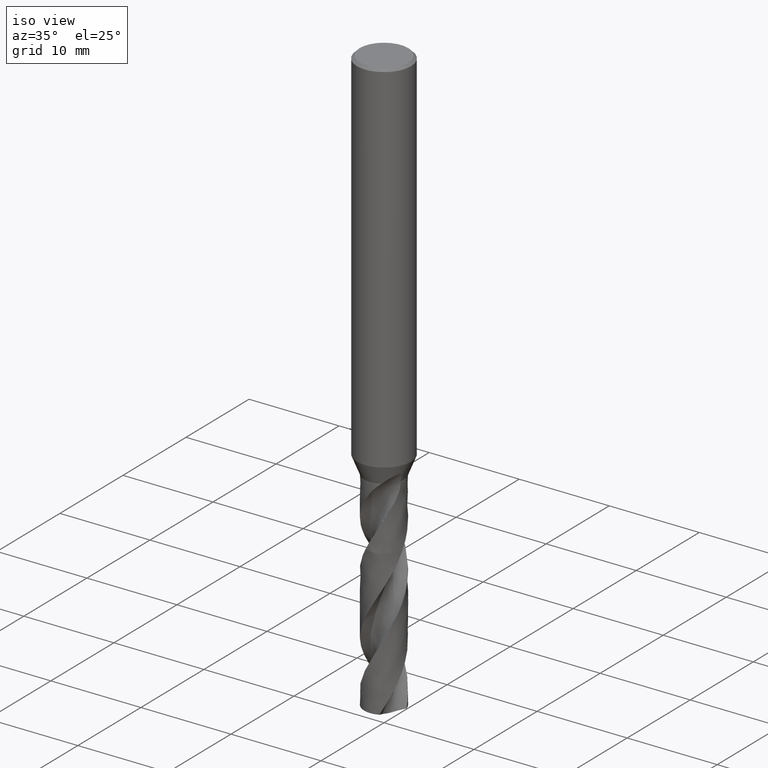
[diagram: clean part render]
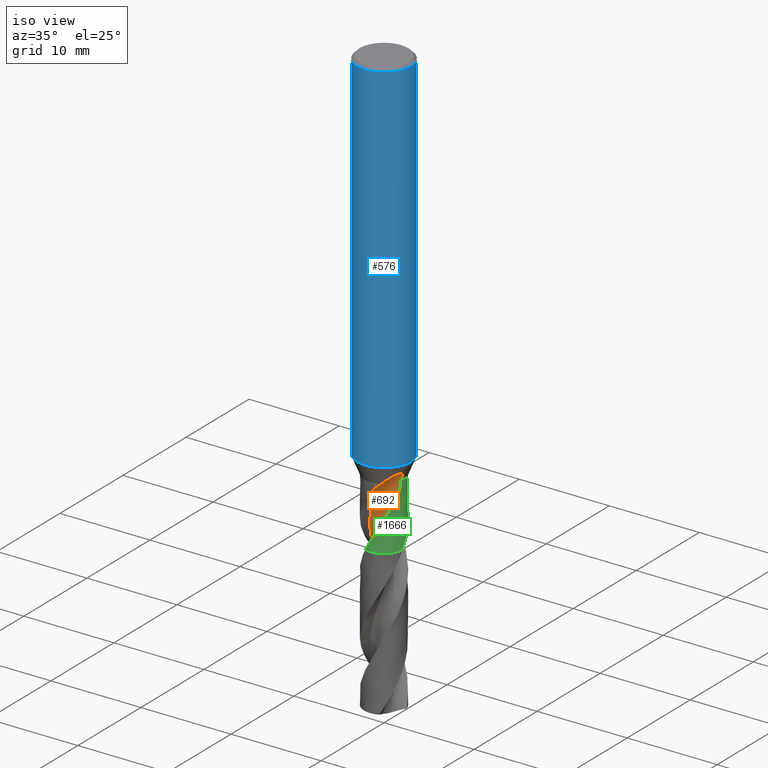
[diagram: same view with three faces highlighted in distinct colors, each labeled with its STEP entity id]
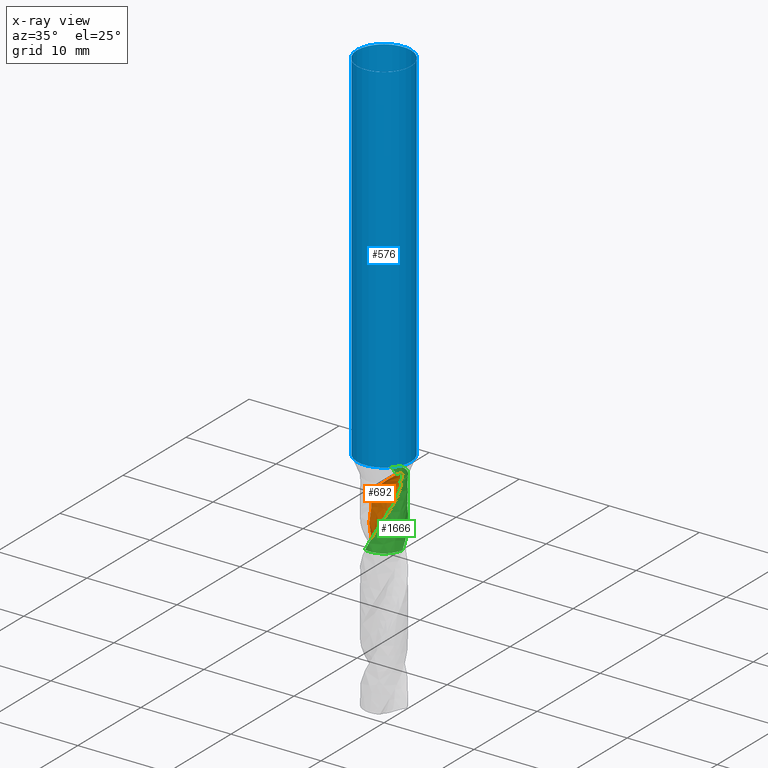
[diagram: x-ray of the same camera — body ghosted, the three highlighted faces saturated]
A machine part, iso view with three faces highlighted in distinct colors.
The next image is the same camera in x-ray (body ghosted, the three faces saturated) — at least one of them is partly hidden behind the body in this view.
Their STEP definitions:

[orange] entity #692 — the highlighted face is a freeform B-spline surface patch.
#72 = EDGE_CURVE('', #73, #75, #77, .T.);
#73 = VERTEX_POINT('', #74);
#74 = CARTESIAN_POINT('', (0.171447358246171, -2.19330932687353, -42.888008908491));
#75 = VERTEX_POINT('', #76);
#76 = CARTESIAN_POINT('', (1.07485303891592, -1.91955488192789, -42.));
#77 = B_SPLINE_CURVE_WITH_KNOTS('', 3, (#78, #79, #80, #81, #82, #83, #84, #85, #86, #87, #88, #89, #90, #91, #92, #93, #94, #95, #96, #97, #98, #99), .UNSPECIFIED., .F., .U., (4, 3, 3, 3, 3, 3, 3, 4), (0., 0.19922311495819, 0.398586260824192, 0.598068018700162, 0.797647707779787, 0.997309323395218, 1.19703063951871, 1.30484126843729), .UNSPECIFIED.);
#78 = CARTESIAN_POINT('', (0.171447358246169, -2.19330932687353, -42.888008908491));
#79 = CARTESIAN_POINT('', (0.213833458020235, -2.18999607564007, -42.8369949477182));
#80 = CARTESIAN_POINT('', (0.25707144709987, -2.18537917060123, -42.7867412244108));
#81 = CARTESIAN_POINT('', (0.301014683703685, -2.17930956043324, -42.737323261374));
#82 = CARTESIAN_POINT('', (0.344988807342446, -2.17323568402826, -42.6878705632001));
#83 = CARTESIAN_POINT('', (0.38970246672735, -2.16570232019433, -42.6392176821083));
#84 = CARTESIAN_POINT('', (0.434991570135555, -2.15656725698787, -42.591451243956));
#85 = CARTESIAN_POINT('', (0.480307618501725, -2.14742675883403, -42.5436563869441));
#86 = CARTESIAN_POINT('', (0.526236027973533, -2.1366750591239, -42.4967075679151));
#87 = CARTESIAN_POINT('', (0.572588474571857, -2.12418041578136, -42.4506991351565));
#88 = CARTESIAN_POINT('', (0.618963676889482, -2.1116796384671, -42.4046681155647));
#89 = CARTESIAN_POINT('', (0.665806620611885, -2.09742247033439, -42.3595352662318));
#90 = CARTESIAN_POINT('', (0.712914013469923, -2.08128652746281, -42.3154182800032));
#91 = CARTESIAN_POINT('', (0.76004074369403, -2.06514396086159, -42.2712831839567));
#92 = CARTESIAN_POINT('', (0.807481985599218, -2.04710387697155, -42.2281182549304));
#93 = CARTESIAN_POINT('', (0.855015618922485, -2.02705409187781, -42.1860709282387));
#94 = CARTESIAN_POINT('', (0.902563465203262, -2.00699831172913, -42.1440110290416));
#95 = CARTESIAN_POINT('', (0.950259994452048, -1.98490763406751, -42.1030171865768));
#96 = CARTESIAN_POINT('', (0.997857911514621, -1.96068344931753, -42.0632718184404));
#97 = CARTESIAN_POINT('', (1.02355152035584, -1.94760710552195, -42.0418170572835));
#98 = CARTESIAN_POINT('', (1.04923048031659, -1.93390221069383, -42.020714674189));
#99 = CARTESIAN_POINT('', (1.07485303891589, -1.91955488192791, -42.));
#323 = EDGE_CURVE('', #324, #75, #326, .T.);
#324 = VERTEX_POINT('', #325);
#325 = CARTESIAN_POINT('', (2.40680370694368, -0.983512031569595, -41.));
#326 = B_SPLINE_CURVE_WITH_KNOTS('', 3, (#327, #328, #329, #330, #331, #332, #333, #334, #335, #336, #337, #338, #339, #340, #341, #342, #343, #344, #345, #346, #347, #348, #349, #350, #351, #352, #353, #354, #355, #356, #357, #358, #359, #360, #361, #362, #363, #364, #365, #366, #367, #368, #369, #370, #371, #372), .UNSPECIFIED., .F., .U., (4, 3, 3, 3, 3, 3, 3, 3, 3, 3, 3, 3, 3, 3, 3, 4), (0., 0.087978884655621, 0.175646705089474, 0.263122013074197, 0.35047767428239, 0.437757632068971, 0.568376770379757, 0.698889539616381, 0.829345841282125, 0.959773548824038, 1.15471898814714, 1.34965521635615, 1.5446113484457, 1.73960280636321, 1.93464343704556, 2.00909370297387), .UNSPECIFIED.);
#327 = CARTESIAN_POINT('', (2.4068037069445, -0.983512031567589, -41.));
#328 = CARTESIAN_POINT('', (2.39569212006139, -1.01065170333356, -41.0000492449862));
#329 = CARTESIAN_POINT('', (2.38337291954996, -1.03735425652507, -41.0020559213199));
#330 = CARTESIAN_POINT('', (2.37019689360004, -1.06332153361517, -41.0055379368837));
#331 = CARTESIAN_POINT('', (2.35706745371761, -1.08919699900669, -41.0090076411929));
#332 = CARTESIAN_POINT('', (2.34303245800057, -1.1144568703764, -41.0139553730623));
#333 = CARTESIAN_POINT('', (2.32833604867261, -1.13897502891945, -41.0200246566584));
#334 = CARTESIAN_POINT('', (2.31367191163953, -1.163439347288, -41.026080612529));
#335 = CARTESIAN_POINT('', (2.29830841018024, -1.18723502566149, -41.0332707919856));
#336 = CARTESIAN_POINT('', (2.28241750803555, -1.21031286816414, -41.0413396707256));
#337 = CARTESIAN_POINT('', (2.26654834111263, -1.2333591453082, -41.049397513033));
#338 = CARTESIAN_POINT('', (2.25012238613685, -1.25573464186315, -41.0583481482804));
#339 = CARTESIAN_POINT('', (2.23326515662158, -1.27742407234799, -41.0680069572128));
#340 = CARTESIAN_POINT('', (2.21642253577546, -1.2990947065227, -41.0776573957102));
#341 = CARTESIAN_POINT('', (2.19912535197088, -1.32011136090613, -41.088029183234));
#342 = CARTESIAN_POINT('', (2.18146902578352, -1.3404736034761, -41.0989861193377));
#343 = CARTESIAN_POINT('', (2.15504538660205, -1.37094679166288, -41.11538376192));
#344 = CARTESIAN_POINT('', (2.12776807040788, -1.40001290946632, -41.1331202494553));
#345 = CARTESIAN_POINT('', (2.09987800615982, -1.42769440018979, -41.1518708754631));
#346 = CARTESIAN_POINT('', (2.07201065405295, -1.45535334862292, -41.1706062319877));
#347 = CARTESIAN_POINT('', (2.0434801541532, -1.48168029427129, -41.19039042538));
#348 = CARTESIAN_POINT('', (2.01446881028987, -1.50670533820791, -41.2109989049259));
#349 = CARTESIAN_POINT('', (1.98547001845593, -1.53171955482511, -41.2315984680203));
#350 = CARTESIAN_POINT('', (1.95594946522141, -1.55546821748721, -41.2530519687616));
#351 = CARTESIAN_POINT('', (1.92605375366385, -1.57798136396998, -41.2751966662396));
#352 = CARTESIAN_POINT('', (1.89616459481143, -1.60048957589849, -41.297336509922));
#353 = CARTESIAN_POINT('', (1.86586572060941, -1.62178868625678, -41.3201935479115));
#354 = CARTESIAN_POINT('', (1.83528069016687, -1.64190674484857, -41.3436450666412));
#355 = CARTESIAN_POINT('', (1.78956638368475, -1.67197645813586, -41.3786971787094));
#356 = CARTESIAN_POINT('', (1.74313321387243, -1.69946022598404, -41.415136996225));
#357 = CARTESIAN_POINT('', (1.69633201168632, -1.72444349432845, -41.4526619187636));
#358 = CARTESIAN_POINT('', (1.64953302084311, -1.74942558222085, -41.4901850682608));
#359 = CARTESIAN_POINT('', (1.60228022813221, -1.77195254858815, -41.5288633172417));
#360 = CARTESIAN_POINT('', (1.5548771651706, -1.79210322935485, -41.5684756473183));
#361 = CARTESIAN_POINT('', (1.50746926213944, -1.81225596759823, -41.6080920219949));
#362 = CARTESIAN_POINT('', (1.45983649603882, -1.83006327787556, -41.648705637387));
#363 = CARTESIAN_POINT('', (1.41225250571013, -1.84560142032631, -41.6901475155372));
#364 = CARTESIAN_POINT('', (1.36465989321685, -1.86114237827068, -41.7315969029082));
#365 = CARTESIAN_POINT('', (1.31704964051039, -1.87443479613349, -41.7739331341484));
#366 = CARTESIAN_POINT('', (1.26967589149928, -1.88555581217999, -41.8170223527295));
#367 = CARTESIAN_POINT('', (1.22229019582013, -1.89667963271399, -41.8601224375097));
#368 = CARTESIAN_POINT('', (1.17508099037349, -1.90564568621688, -41.9040300161733));
#369 = CARTESIAN_POINT('', (1.12827761301434, -1.91254660905997, -41.9486235356354));
#370 = CARTESIAN_POINT('', (1.11041198225556, -1.91518080655524, -41.9656456267301));
#371 = CARTESIAN_POINT('', (1.09259973607855, -1.91751511974646, -41.9827731182697));
#372 = CARTESIAN_POINT('', (1.07485303891589, -1.91955488192791, -42.));
#374 = EDGE_CURVE('', #375, #324, #377, .T.);
#375 = VERTEX_POINT('', #376);
#376 = CARTESIAN_POINT('', (2.40763630350238, -0.981472072989024, -41.));
#377 = LINE('', #378, #379);
#378 = CARTESIAN_POINT('', (2.40763630350238, -0.981472072989024, -41.));
#379 = VECTOR('', #380, 0.00220332658496392);
#380 = DIRECTION('', (-0.000832596558702825, -0.00203995858057093, 0.));
#382 = EDGE_CURVE('', #375, #383, #385, .T.);
#383 = VERTEX_POINT('', #384);
#384 = CARTESIAN_POINT('', (2.13987162424612, -0.510832097411909, -42.));
#385 = B_SPLINE_CURVE_WITH_KNOTS('', 3, (#386, #387, #388, #389, #390, #391, #392, #393, #394, #395, #396, #397, #398, #399, #400, #401, #402, #403, #404, #405, #406, #407, #408, #409, #410, #411, #412, #413, #414, #415, #416, #417, #418, #419, #420, #421, #422, #423, #424, #425, #426, #427, #428, #429, #430, #431, #432, #433, #434), .UNSPECIFIED., .F., .U., (4, 3, 3, 3, 3, 3, 3, 3, 3, 3, 3, 3, 3, 3, 3, 3, 4), (0., 0.0877111034100097, 0.146011922746144, 0.204240755028322, 0.2623958685525, 0.320489605695488, 0.378551763429841, 0.436619155403532, 0.49471930974812, 0.552864267138211, 0.640050288437856, 0.727346793899331, 0.814727943575417, 0.945823220699297, 1.07703155616226, 1.20830076490114, 1.32494864682861), .UNSPECIFIED.);
#386 = CARTESIAN_POINT('', (2.40763630350528, -0.981472072981917, -41.));
#387 = CARTESIAN_POINT('', (2.41865472536111, -0.954390785289211, -41.0000492068302));
#388 = CARTESIAN_POINT('', (2.42853288568035, -0.926690232361137, -41.0020696274588));
#389 = CARTESIAN_POINT('', (2.43680672531815, -0.899018159717871, -41.0066088077674));
#390 = CARTESIAN_POINT('', (2.44230627567365, -0.880624769997417, -41.0096259620479));
#391 = CARTESIAN_POINT('', (2.44712435891124, -0.862151891247353, -41.0137743706905));
#392 = CARTESIAN_POINT('', (2.45111876633337, -0.843915806788578, -41.0191739070069));
#393 = CARTESIAN_POINT('', (2.45510824165291, -0.825702239371773, -41.024566776235));
#394 = CARTESIAN_POINT('', (2.45829609788799, -0.807618885355134, -41.0312457511143));
#395 = CARTESIAN_POINT('', (2.46057910026155, -0.790072028875916, -41.0392225122203));
#396 = CARTESIAN_POINT('', (2.46285921231269, -0.772547387035318, -41.0471891746021));
#397 = CARTESIAN_POINT('', (2.46425004982546, -0.755439893751143, -41.0565098607842));
#398 = CARTESIAN_POINT('', (2.46473547860929, -0.739167305333906, -41.0670334969054));
#399 = CARTESIAN_POINT('', (2.46522039507597, -0.722911890859408, -41.0775460264761));
#400 = CARTESIAN_POINT('', (2.46480636822613, -0.707373778558456, -41.0893339589405));
#401 = CARTESIAN_POINT('', (2.46358021153045, -0.692867687842319, -41.10210332829));
#402 = CARTESIAN_POINT('', (2.46235472136622, -0.678369482550481, -41.1148657562867));
#403 = CARTESIAN_POINT('', (2.46031367355268, -0.664802807010447, -41.1286889286079));
#404 = CARTESIAN_POINT('', (2.45761086108713, -0.652316946110932, -41.1432277536488));
#405 = CARTESIAN_POINT('', (2.45490780496603, -0.639829959624859, -41.1577678893487));
#406 = CARTESIAN_POINT('', (2.45153174008292, -0.628350650912672, -41.1730991698736));
#407 = CARTESIAN_POINT('', (2.44764926640496, -0.617886715312345, -41.1889130669253));
#408 = CARTESIAN_POINT('', (2.44376460218531, -0.607416875824699, -41.2047358863815));
#409 = CARTESIAN_POINT('', (2.43935909485155, -0.59791658969128, -41.22110446128));
#410 = CARTESIAN_POINT('', (2.43457735702274, -0.589313271282337, -41.2377834200674));
#411 = CARTESIAN_POINT('', (2.42979193182992, -0.580703318555973, -41.2544752405788));
#412 = CARTESIAN_POINT('', (2.42461663632267, -0.572964578587515, -41.2715253158626));
#413 = CARTESIAN_POINT('', (2.41916367405868, -0.565994798655561, -41.2887687442473));
#414 = CARTESIAN_POINT('', (2.41098717681053, -0.555543894417651, -41.3146245704773));
#415 = CARTESIAN_POINT('', (2.4021635321212, -0.546782730812786, -41.3409954719532));
#416 = CARTESIAN_POINT('', (2.39294943606178, -0.539368969595886, -41.3675423519036));
#417 = CARTESIAN_POINT('', (2.38372366368471, -0.531945813487674, -41.3941228726801));
#418 = CARTESIAN_POINT('', (2.37408088818195, -0.525852747191587, -41.420951268759));
#419 = CARTESIAN_POINT('', (2.36417731244755, -0.520807769991662, -41.4478438253506));
#420 = CARTESIAN_POINT('', (2.35426413403335, -0.515757901093833, -41.4747624574343));
#421 = CARTESIAN_POINT('', (2.34407340998685, -0.511751179345801, -41.5017874472881));
#422 = CARTESIAN_POINT('', (2.33370046398541, -0.508570352766639, -41.5288183438499));
#423 = CARTESIAN_POINT('', (2.31813824907189, -0.503798255541734, -41.569371974568));
#424 = CARTESIAN_POINT('', (2.30214497975162, -0.500870515366422, -41.6099983140268));
#425 = CARTESIAN_POINT('', (2.28589948711352, -0.49926529067583, -41.6505329860002));
#426 = CARTESIAN_POINT('', (2.26963998414297, -0.497658681617766, -41.6911026156226));
#427 = CARTESIAN_POINT('', (2.2531071627926, -0.497380204923154, -41.7316269839365));
#428 = CARTESIAN_POINT('', (2.23639226483874, -0.498075396192415, -41.7720370862961));
#429 = CARTESIAN_POINT('', (2.21966961211388, -0.498770909991261, -41.8124659366666));
#430 = CARTESIAN_POINT('', (2.20275357752809, -0.500444984199519, -41.8528046094551));
#431 = CARTESIAN_POINT('', (2.18569269267455, -0.502843786576684, -41.8930264287955));
#432 = CARTESIAN_POINT('', (2.17053212226284, -0.504975400068889, -41.9287681695922));
#433 = CARTESIAN_POINT('', (2.15525227879913, -0.507681890390143, -41.9644279552499));
#434 = CARTESIAN_POINT('', (2.13987162424612, -0.510832097411909, -42.));
#614 = VERTEX_POINT('', #615);
#615 = CARTESIAN_POINT('', (-1.31217877039561, -0.0797523577554911, -49.));
#621 = EDGE_CURVE('', #614, #73, #622, .T.);
#622 = B_SPLINE_CURVE_WITH_KNOTS('', 3, (#623, #624, #625, #626, #627, #628, #629, #630, #631, #632, #633, #634, #635, #636, #637, #638, #639, #640, #641), .UNSPECIFIED., .F., .U., (4, 1, 1, 1, 1, 1, 1, 1, 1, 1, 1, 1, 1, 1, 1, 1, 4), (17.05, 17.3733870967742, 17.7774193548387, 18.1814516129032, 18.5854838709677, 18.9895161290323, 19.3935483870968, 19.7975806451613, 20.2016129032258, 20.6056451612903, 21.0096774193548, 21.4137096774194, 21.8177419354839, 22.2217741935484, 22.6258064516129, 23.0298387096774, 23.161991091509), .UNSPECIFIED.);
#623 = CARTESIAN_POINT('', (-1.31217877039561, -0.0797523577554911, -49.));
#624 = CARTESIAN_POINT('', (-1.31088794167378, -0.116562196115275, -48.8922043010753));
#625 = CARTESIAN_POINT('', (-1.30454220937197, -0.199331304181695, -48.6497311827957));
#626 = CARTESIAN_POINT('', (-1.28266349674743, -0.326987022692083, -48.2725806451613));
#627 = CARTESIAN_POINT('', (-1.24496891284406, -0.460929476802844, -47.8685483870968));
#628 = CARTESIAN_POINT('', (-1.1938248021131, -0.590805626291886, -47.4645161290323));
#629 = CARTESIAN_POINT('', (-1.1278548335232, -0.714477942918602, -47.0604838709677));
#630 = CARTESIAN_POINT('', (-1.04166046951628, -0.825136202209816, -46.6564516129032));
#631 = CARTESIAN_POINT('', (-0.939438801360551, -0.920152990827819, -46.2524193548387));
#632 = CARTESIAN_POINT('', (-0.823749065427695, -0.997465694372238, -45.8483870967742));
#633 = CARTESIAN_POINT('', (-0.698056618960468, -1.05177227757478, -45.4443548387097));
#634 = CARTESIAN_POINT('', (-0.596530926696234, -1.1387277146058, -45.0403225806452));
#635 = CARTESIAN_POINT('', (-0.500484230163201, -1.25810171607037, -44.6362903225806));
#636 = CARTESIAN_POINT('', (-0.398663746663715, -1.41509127905815, -44.2322580645161));
#637 = CARTESIAN_POINT('', (-0.276820170544652, -1.60980917260006, -43.8282258064516));
#638 = CARTESIAN_POINT('', (-0.121158097140988, -1.83995081014633, -43.4241935483871));
#639 = CARTESIAN_POINT('', (0.0363655845614572, -2.04169739796794, -43.1107879157335));
#640 = CARTESIAN_POINT('', (0.143825502799834, -2.16307472703826, -42.9320597024348));
#641 = CARTESIAN_POINT('', (0.171447358246172, -2.19330932687353, -42.888008908491));
#692 = ADVANCED_FACE('', (#693), #893, .T.);
#693 = FACE_OUTER_BOUND('', #694, .T.);
#694 = EDGE_LOOP('', (#695, #767, #815, #827, #888, #889, #890, #891, #892));
#695 = ORIENTED_EDGE('', *, *, #696, .T.);
#696 = EDGE_CURVE('', #614, #697, #699, .T.);
#697 = VERTEX_POINT('', #698);
#698 = CARTESIAN_POINT('', (-0.609180016935099, -2.11397722479854, -49.));
#699 = B_SPLINE_CURVE_WITH_KNOTS('', 3, (#700, #701, #702, #703, #704, #705, #706, #707, #708, #709, #710, #711, #712, #713, #714, #715, #716, #717, #718, #719, #720, #721, #722, #723, #724, #725, #726, #727, #728, #729, #730, #731, #732, #733, #734, #735, #736, #737, #738, #739, #740, #741, #742, #743, #744, #745, #746, #747, #748, #749, #750, #751, #752, #753, #754, #755, #756, #757, #758, #759, #760, #761, #762, #763, #764, #765, #766), .UNSPECIFIED., .F., .U., (4, 3, 3, 3, 3, 3, 3, 3, 3, 3, 3, 3, 3, 3, 3, 3, 3, 3, 3, 3, 3, 3, 4), (0., 0.132176811799124, 0.264178284748798, 0.396008889272389, 0.527672092205246, 0.659170435048917, 0.790505590426335, 0.921678399429859, 1.05268889161965, 1.18353628863888, 1.24178545583899, 1.2590716047477, 1.27637103288755, 1.40853153168481, 1.54051714645947, 1.67233225158479, 1.80398022603203, 1.93546352948226, 2.06678375693065, 2.19794167438111, 2.32893723731147, 2.45976959280765, 2.51764673720648), .UNSPECIFIED.);
#700 = CARTESIAN_POINT('', (-1.31217877039562, -0.0797523577554917, -49.));
#701 = CARTESIAN_POINT('', (-1.26986289953602, -0.0920225259057834, -49.));
#702 = CARTESIAN_POINT('', (-1.22811093239548, -0.106436075866002, -49.));
#703 = CARTESIAN_POINT('', (-1.1872374419996, -0.122884411219471, -49.));
#704 = CARTESIAN_POINT('', (-1.14641817223956, -0.13931092707104, -49.));
#705 = CARTESIAN_POINT('', (-1.10637273362022, -0.157807991802079, -49.));
#706 = CARTESIAN_POINT('', (-1.06740204317426, -0.178236611259347, -49.));
#707 = CARTESIAN_POINT('', (-1.02848179807857, -0.198638787026437, -49.));
#708 = CARTESIAN_POINT('', (-0.990536216205437, -0.221018511442116, -49.));
#709 = CARTESIAN_POINT('', (-0.953849699115368, -0.245208048811392, -49.));
#710 = CARTESIAN_POINT('', (-0.917209767424354, -0.269366869739297, -49.));
#711 = CARTESIAN_POINT('', (-0.881734333348632, -0.295391140125049, -49.));
#712 = CARTESIAN_POINT('', (-0.847688611156682, -0.323086302579481, -49.));
#713 = CARTESIAN_POINT('', (-0.813685518801103, -0.350746786954916, -49.));
#714 = CARTESIAN_POINT('', (-0.781023975282331, -0.380142771267399, -49.));
#715 = CARTESIAN_POINT('', (-0.749947548264133, -0.411055040181349, -49.));
#716 = CARTESIAN_POINT('', (-0.718909686624598, -0.441928947434375, -49.));
#717 = CARTESIAN_POINT('', (-0.689375990941444, -0.474391971145656, -49.));
#718 = CARTESIAN_POINT('', (-0.661566158228328, -0.508202623441817, -49.));
#719 = CARTESIAN_POINT('', (-0.633790701882199, -0.541971481621364, -49.));
#720 = CARTESIAN_POINT('', (-0.607666094339979, -0.577168208692385, -49.));
#721 = CARTESIAN_POINT('', (-0.583386193625347, -0.613531626838562, -49.));
#722 = CARTESIAN_POINT('', (-0.559136337522488, -0.649850047898723, -49.));
#723 = CARTESIAN_POINT('', (-0.536666743994306, -0.687421933798499, -49.));
#724 = CARTESIAN_POINT('', (-0.51614373735168, -0.725969170115247, -49.));
#725 = CARTESIAN_POINT('', (-0.495646279832739, -0.764468418916057, -49.));
#726 = CARTESIAN_POINT('', (-0.477040073027292, -0.804035400255299, -49.));
#727 = CARTESIAN_POINT('', (-0.460462501637934, -0.844377959046211, -49.));
#728 = CARTESIAN_POINT('', (-0.453082685534381, -0.862337203982103, -49.));
#729 = CARTESIAN_POINT('', (-0.446098263705286, -0.880464051487162, -49.));
#730 = CARTESIAN_POINT('', (-0.439519471516987, -0.898731937454968, -49.));
#731 = CARTESIAN_POINT('', (-0.437567134910771, -0.904153154826229, -49.));
#732 = CARTESIAN_POINT('', (-0.435650321838991, -0.909587297023399, -49.));
#733 = CARTESIAN_POINT('', (-0.433769279767259, -0.915033662484402, -49.));
#734 = CARTESIAN_POINT('', (-0.43188679267775, -0.920484211846994, -49.));
#735 = CARTESIAN_POINT('', (-0.43004005046562, -0.925947238091717, -49.));
#736 = CARTESIAN_POINT('', (-0.428229291916674, -0.931422034843527, -49.));
#737 = CARTESIAN_POINT('', (-0.414395843140482, -0.973247224883541, -49.));
#738 = CARTESIAN_POINT('', (-0.402648065620765, -1.01582049049055, -49.));
#739 = CARTESIAN_POINT('', (-0.393074449164116, -1.05882114972814, -49.));
#740 = CARTESIAN_POINT('', (-0.38351350118687, -1.1017649074836, -49.));
#741 = CARTESIAN_POINT('', (-0.376096991608732, -1.14524253519414, -49.));
#742 = CARTESIAN_POINT('', (-0.370880637608525, -1.18892740336754, -49.));
#743 = CARTESIAN_POINT('', (-0.365671022514621, -1.23255583590917, -49.));
#744 = CARTESIAN_POINT('', (-0.362642847261065, -1.27650001420642, -49.));
#745 = CARTESIAN_POINT('', (-0.361818802648955, -1.32043065460631, -49.));
#746 = CARTESIAN_POINT('', (-0.360995802857426, -1.3643055945786, -49.));
#747 = CARTESIAN_POINT('', (-0.362369282295264, -1.40827641021877, -49.));
#748 = CARTESIAN_POINT('', (-0.365928975203857, -1.45201445170013, -49.));
#749 = CARTESIAN_POINT('', (-0.369484215494149, -1.49569778374196, -49.));
#750 = CARTESIAN_POINT('', (-0.375229030798908, -1.53925755385776, -49.));
#751 = CARTESIAN_POINT('', (-0.383120589958213, -1.58236899695393, -49.));
#752 = CARTESIAN_POINT('', (-0.39100236138111, -1.62542696982543, -49.));
#753 = CARTESIAN_POINT('', (-0.401045092904446, -1.6681445380657, -49.));
#754 = CARTESIAN_POINT('', (-0.413174095009268, -1.71020400378399, -49.));
#755 = CARTESIAN_POINT('', (-0.425288105834036, -1.75221148458017, -49.));
#756 = CARTESIAN_POINT('', (-0.439513195934309, -1.79366643792032, -49.));
#757 = CARTESIAN_POINT('', (-0.455743831746971, -1.83426131644239, -49.));
#758 = CARTESIAN_POINT('', (-0.471954376381461, -1.8748059443799, -49.));
#759 = CARTESIAN_POINT('', (-0.490205505495528, -1.91459270855027, -49.));
#760 = CARTESIAN_POINT('', (-0.510362151405601, -1.95332716656369, -49.));
#761 = CARTESIAN_POINT('', (-0.530493684140947, -1.99201336529745, -49.));
#762 = CARTESIAN_POINT('', (-0.552575544876775, -2.0297451384483, -49.));
#763 = CARTESIAN_POINT('', (-0.57644472275602, -2.06624394569061, -49.));
#764 = CARTESIAN_POINT('', (-0.58700388336701, -2.08239015607669, -49.));
#765 = CARTESIAN_POINT('', (-0.597920950242573, -2.09830890046743, -49.));
#766 = CARTESIAN_POINT('', (-0.609180034271912, -2.11397721234049, -49.));
#767 = ORIENTED_EDGE('', *, *, #768, .F.);
#768 = EDGE_CURVE('', #769, #697, #771, .T.);
#769 = VERTEX_POINT('', #770);
#770 = CARTESIAN_POINT('', (0.952412201082073, -1.98315682668567, -46.1907710430073));
#771 = B_SPLINE_CURVE_WITH_KNOTS('', 3, (#772, #773, #774, #775, #776, #777, #778, #779, #780, #781, #782, #783, #784, #785, #786, #787, #788, #789, #790, #791, #792, #793, #794, #795, #796, #797, #798, #799, #800, #801, #802, #803, #804, #805, #806, #807, #808, #809, #810, #811, #812, #813, #814), .UNSPECIFIED., .F., .U., (4, 3, 3, 3, 3, 3, 3, 3, 3, 3, 3, 3, 3, 3, 4), (0., 0.196947824039356, 0.492251811513666, 0.787523784529434, 0.984415153297662, 1.18129522315335, 1.3781723412178, 1.50945464401446, 1.80456793034015, 1.93583976032642, 1.9942058825516, 2.03313442720166, 2.47757403586272, 2.92184604137636, 3.23393473255913), .UNSPECIFIED.);
#772 = CARTESIAN_POINT('', (0.952412201082072, -1.98315682668567, -46.1907710430073));
#773 = CARTESIAN_POINT('', (0.924136541742145, -1.99673622826734, -46.2484417826207));
#774 = CARTESIAN_POINT('', (0.895460747899487, -2.00976315083047, -46.3060505554469));
#775 = CARTESIAN_POINT('', (0.866424533446663, -2.02220387890089, -46.3636001323464));
#776 = CARTESIAN_POINT('', (0.822887571558906, -2.040857533107, -46.4498900907085));
#777 = CARTESIAN_POINT('', (0.77852172039691, -2.05820170636943, -46.5360595162994));
#778 = CARTESIAN_POINT('', (0.733401833249664, -2.07415567183076, -46.6220772444122));
#779 = CARTESIAN_POINT('', (0.688286837633917, -2.09010790769281, -46.7080856471819));
#780 = CARTESIAN_POINT('', (0.642401931794381, -2.10467509689208, -46.7939622745779));
#781 = CARTESIAN_POINT('', (0.595861285973631, -2.11776989493184, -46.8796931124152));
#782 = CARTESIAN_POINT('', (0.564827350157056, -2.12650168441886, -46.9368596014491));
#783 = CARTESIAN_POINT('', (0.533497084295627, -2.13458058318911, -46.9939695987586));
#784 = CARTESIAN_POINT('', (0.501896766983091, -2.14198497550566, -47.0510130182613));
#785 = CARTESIAN_POINT('', (0.470298263103129, -2.14938894290983, -47.1080531642399));
#786 = CARTESIAN_POINT('', (0.438422006920773, -2.156119784139, -47.1650315333794));
#787 = CARTESIAN_POINT('', (0.406328343655924, -2.16215107639173, -47.2219567714206));
#788 = CARTESIAN_POINT('', (0.374235161566209, -2.16818227821825, -47.2788811559908));
#789 = CARTESIAN_POINT('', (0.341920632146017, -2.17351437785145, -47.3357595385639));
#790 = CARTESIAN_POINT('', (0.309467455722107, -2.17812531637849, -47.3926125409184));
#791 = CARTESIAN_POINT('', (0.287826912748482, -2.18119999886996, -47.430523462936));
#792 = CARTESIAN_POINT('', (0.266125412204176, -2.18395415223546, -47.4684269870642));
#793 = CARTESIAN_POINT('', (0.244386741860208, -2.18638402857388, -47.5063285792933));
#794 = CARTESIAN_POINT('', (0.195519755915458, -2.19184621788897, -47.5915286649212));
#795 = CARTESIAN_POINT('', (0.14643896084166, -2.19567217506114, -47.6767269910818));
#796 = CARTESIAN_POINT('', (0.0972867897690072, -2.19784787474845, -47.7619103393851));
#797 = CARTESIAN_POINT('', (0.0754229979864025, -2.19881566607703, -47.799801463012));
#798 = CARTESIAN_POINT('', (0.0535435258329949, -2.19945719672041, -47.837693278515));
#799 = CARTESIAN_POINT('', (0.0316627083469464, -2.19977214113192, -47.8755856246688));
#800 = CARTESIAN_POINT('', (0.0219340524128341, -2.19991217181496, -47.8924333315016));
#801 = CARTESIAN_POINT('', (0.0122049309624971, -2.19998765595704, -47.9092814296));
#802 = CARTESIAN_POINT('', (0.00247628340712847, -2.19999860636785, -47.9261297196388));
#803 = CARTESIAN_POINT('', (-0.00401244800597849, -2.20000590998063, -47.9373670502348));
#804 = CARTESIAN_POINT('', (-0.0105010085596877, -2.19998450607177, -47.948604534808));
#805 = CARTESIAN_POINT('', (-0.016989122779859, -2.19993440122817, -47.959842112438));
#806 = CARTESIAN_POINT('', (-0.0910626585588881, -2.19936236399225, -48.0881393464872));
#807 = CARTESIAN_POINT('', (-0.16510151832702, -2.1950455748383, -48.2164942847263));
#808 = CARTESIAN_POINT('', (-0.238715541501923, -2.18701049157187, -48.344805660773));
#809 = CARTESIAN_POINT('', (-0.312301804005324, -2.17897843842521, -48.4730686491646));
#810 = CARTESIAN_POINT('', (-0.385505454812216, -2.16722479413547, -48.6013723765152));
#811 = CARTESIAN_POINT('', (-0.457896523230132, -2.15182033962265, -48.7296419445841));
#812 = CARTESIAN_POINT('', (-0.508749229490006, -2.14099914002505, -48.8197477381529));
#813 = CARTESIAN_POINT('', (-0.55923090280503, -2.1283709476044, -48.9098886418327));
#814 = CARTESIAN_POINT('', (-0.609180016935099, -2.11397722479854, -49.));
#815 = ORIENTED_EDGE('', *, *, #816, .T.);
#816 = EDGE_CURVE('', #769, #817, #819, .T.);
#817 = VERTEX_POINT('', #818);
#818 = CARTESIAN_POINT('', (1.54986827332936, -1.56138026608737, -44.9052652555916));
#819 = B_SPLINE_CURVE_WITH_KNOTS('', 3, (#820, #821, #822, #823, #824, #825, #826), .UNSPECIFIED., .F., .U., (4, 1, 1, 1, 4), (19.8592289569927, 20.2016129032258, 20.6056451612903, 21.0096774193548, 21.1447347444088), .UNSPECIFIED.);
#820 = CARTESIAN_POINT('', (0.952412201082074, -1.98315682668567, -46.1907710430073));
#821 = CARTESIAN_POINT('', (1.00743412640937, -1.94684315843681, -46.0766430609296));
#822 = CARTESIAN_POINT('', (1.12164527578453, -1.85960096644026, -45.8278376594971));
#823 = CARTESIAN_POINT('', (1.27069980474729, -1.69984705953127, -45.4443548387097));
#824 = CARTESIAN_POINT('', (1.42248555104872, -1.61301726898757, -45.1299808916487));
#825 = CARTESIAN_POINT('', (1.52355773922213, -1.57139707892271, -44.9502843639425));
#826 = CARTESIAN_POINT('', (1.54986827332959, -1.56138026608728, -44.9052652555912));
#827 = ORIENTED_EDGE('', *, *, #828, .T.);
#828 = EDGE_CURVE('', #817, #383, #829, .T.);
#829 = B_SPLINE_CURVE_WITH_KNOTS('', 3, (#830, #831, #832, #833, #834, #835, #836, #837, #838, #839, #840, #841, #842, #843, #844, #845, #846, #847, #848, #849, #850, #851, #852, #853, #854, #855, #856, #857, #858, #859, #860, #861, #862, #863, #864, #865, #866, #867, #868, #869, #870, #871, #872, #873, #874, #875, #876, #877, #878, #879, #880, #881, #882, #883, #884, #885, #886, #887), .UNSPECIFIED., .F., .U., (4, 3, 3, 3, 3, 3, 3, 3, 3, 3, 3, 3, 3, 3, 3, 3, 3, 3, 3, 4), (0., 0.197024514898189, 0.393930469821275, 0.590702378355362, 0.787336644441456, 0.983827511071926, 1.18016790656626, 1.37636902525357, 1.57244037427605, 1.76840785233224, 1.96430070984141, 2.16016142429493, 2.35605420954736, 2.55206633965119, 2.74834291703932, 2.87953297530424, 3.01093784338412, 3.09864044602346, 3.12460675218774, 3.23552398689494), .UNSPECIFIED.);
#830 = CARTESIAN_POINT('', (1.54986827332936, -1.56138026608737, -44.9052652555916));
#831 = CARTESIAN_POINT('', (1.57564901923173, -1.53578960056873, -44.8505509488275));
#832 = CARTESIAN_POINT('', (1.60105949872059, -1.50929453083403, -44.7960768795433));
#833 = CARTESIAN_POINT('', (1.62591608207159, -1.48202459293393, -44.7417474663614));
#834 = CARTESIAN_POINT('', (1.65075770791384, -1.45477106478446, -44.6874507460344));
#835 = CARTESIAN_POINT('', (1.67505144169694, -1.42673742148178, -44.6332869388565));
#836 = CARTESIAN_POINT('', (1.69863332902427, -1.39808612521829, -44.579148294416));
#837 = CARTESIAN_POINT('', (1.72219916266322, -1.36945433371182, -44.5250465055891));
#838 = CARTESIAN_POINT('', (1.74505732362558, -1.34020192861011, -44.4709567378169));
#839 = CARTESIAN_POINT('', (1.76707579259964, -1.31051254980956, -44.4167731668317));
#840 = CARTESIAN_POINT('', (1.78907885959893, -1.28084393880462, -44.3626274973915));
#841 = CARTESIAN_POINT('', (1.81024830892521, -1.25073271735967, -44.3083768554028));
#842 = CARTESIAN_POINT('', (1.83048798367419, -1.22037442681588, -44.2539264677386));
#843 = CARTESIAN_POINT('', (1.85071289823718, -1.19003827566022, -44.1995157891043));
#844 = CARTESIAN_POINT('', (1.87001457035434, -1.159447519102, -44.1448941318909));
#845 = CARTESIAN_POINT('', (1.88832188033097, -1.12882260619801, -44.0899686524072));
#846 = CARTESIAN_POINT('', (1.90661517071585, -1.0982211456077, -44.035085234417));
#847 = CARTESIAN_POINT('', (1.92392045188875, -1.06757787468704, -43.979884652223));
#848 = CARTESIAN_POINT('', (1.94019929028289, -1.03712425195137, -43.9242891513577));
#849 = CARTESIAN_POINT('', (1.95646658105522, -1.00669223191913, -43.8687330879389));
#850 = CARTESIAN_POINT('', (1.97171430258884, -0.976439559801809, -43.8127671574348));
#851 = CARTESIAN_POINT('', (1.98592986971737, -0.946616370323387, -43.7563251181781));
#852 = CARTESIAN_POINT('', (2.00013603450715, -0.916812906243721, -43.699920410332));
#853 = CARTESIAN_POINT('', (2.01331583781748, -0.887429301018077, -43.6430196189017));
#854 = CARTESIAN_POINT('', (2.02548164948427, -0.858734002821896, -43.5855728997237));
#855 = CARTESIAN_POINT('', (2.03764101617774, -0.830053906277393, -43.5281566135808));
#856 = CARTESIAN_POINT('', (2.04879311002945, -0.80204836813476, -43.4701708161787));
#857 = CARTESIAN_POINT('', (2.05897134874118, -0.775007732260085, -43.4115855320294));
#858 = CARTESIAN_POINT('', (2.06914571178054, -0.747977392925736, -43.3530225559998));
#859 = CARTESIAN_POINT('', (2.07835211242344, -0.721897585510065, -43.2938282453994));
#860 = CARTESIAN_POINT('', (2.08663689646683, -0.697098602999072, -43.2339938749339));
#861 = CARTESIAN_POINT('', (2.09492032110245, -0.672303689626103, -43.1741693223837));
#862 = CARTESIAN_POINT('', (2.10228892588662, -0.648770365987929, -43.1136634050757));
#863 = CARTESIAN_POINT('', (2.10879735268907, -0.626876164239458, -43.0525024350781));
#864 = CARTESIAN_POINT('', (2.11530684520011, -0.604978377471174, -42.9913314504067));
#865 = CARTESIAN_POINT('', (2.1209627176602, -0.584698169986074, -42.9294472097316));
#866 = CARTESIAN_POINT('', (2.12581299664658, -0.566497222666174, -42.8669254036622));
#867 = CARTESIAN_POINT('', (2.13066623059541, -0.548285186681878, -42.804365507085));
#868 = CARTESIAN_POINT('', (2.13472099666977, -0.532127639194504, -42.7410836910346));
#869 = CARTESIAN_POINT('', (2.13800060095844, -0.518607202323048, -42.6772447156612));
#870 = CARTESIAN_POINT('', (2.14128462988373, -0.505068524525322, -42.6133196127423));
#871 = CARTESIAN_POINT('', (2.14380069684178, -0.49414378167626, -42.5487067218437));
#872 = CARTESIAN_POINT('', (2.14550695172526, -0.486620920325636, -42.4837375393257));
#873 = CARTESIAN_POINT('', (2.14664740200495, -0.481592686024629, -42.440312536947));
#874 = CARTESIAN_POINT('', (2.14742705486763, -0.478079542605945, -42.3966630348866));
#875 = CARTESIAN_POINT('', (2.14780242714793, -0.476387168107461, -42.3529673879315));
#876 = CARTESIAN_POINT('', (2.14817841406055, -0.47469202252512, -42.309200193986));
#877 = CARTESIAN_POINT('', (2.14815071662377, -0.474820191946688, -42.2653011933921));
#878 = CARTESIAN_POINT('', (2.14763217630938, -0.477154100140247, -42.2215648682258));
#879 = CARTESIAN_POINT('', (2.1472860906901, -0.478711803640029, -42.1923742484031));
#880 = CARTESIAN_POINT('', (2.14672002180539, -0.481255902045349, -42.1632160339462));
#881 = CARTESIAN_POINT('', (2.14589249452384, -0.484917933207518, -42.1342239104047));
#882 = CARTESIAN_POINT('', (2.14564748666654, -0.48600215898279, -42.1256401473968));
#883 = CARTESIAN_POINT('', (2.14537940559514, -0.487184709789666, -42.1170688071178));
#884 = CARTESIAN_POINT('', (2.1450869130152, -0.488469175701912, -42.1085142085201));
#885 = CARTESIAN_POINT('', (2.14383750665245, -0.493955878591445, -42.071972529681));
#886 = CARTESIAN_POINT('', (2.14214336863839, -0.501315778082748, -42.0356544255468));
#887 = CARTESIAN_POINT('', (2.13987162424613, -0.510832097411909, -42.));
#888 = ORIENTED_EDGE('', *, *, #382, .F.);
#889 = ORIENTED_EDGE('', *, *, #374, .T.);
#890 = ORIENTED_EDGE('', *, *, #323, .T.);
#891 = ORIENTED_EDGE('', *, *, #72, .F.);
#892 = ORIENTED_EDGE('', *, *, #621, .F.);
#893 = (
   BOUNDED_SURFACE ()
   B_SPLINE_SURFACE (3, 2, ((#894, #895, #896, #897, #898), (#899, #900, #901, #902, #903), (#904, #905, #906, #907, #908), (#909, #910, #911, #912, #913), (#914, #915, #916, #917, #918), (#919, #920, #921, #922, #923), (#924, #925, #926, #927, #928), (#929, #930, #931, #932, #933), (#934, #935, #936, #937, #938), (#939, #940, #941, #942, #943), (#944, #945, #946, #947, #948), (#949, #950, #951, #952, #953), (#954, #955, #956, #957, #958), (#959, #960, #961, #962, #963), (#964, #965, #966, #967, #968), (#969, #970, #971, #972, #973), (#974, #975, #976, #977, #978), (#979, #980, #981, #982, #983), (#984, #985, #986, #987, #988), (#989, #990, #991, #992, #993), (#994, #995, #996, #997, #998), (#999, #1000, #1001, #1002, #1003)), .UNSPECIFIED., .F., .F., .U.)
   B_SPLINE_SURFACE_WITH_KNOTS ((4, 1, 1, 1, 1, 1, 1, 1, 1, 1, 1, 1, 1, 1, 1, 1, 1, 1, 1, 4), (3, 2, 3), (17.05, 17.3733870967742, 17.7774193548387, 18.1814516129032, 18.5854838709677, 18.9895161290323, 19.3935483870968, 19.7975806451613, 20.2016129032258, 20.6056451612903, 21.0096774193548, 21.4137096774194, 21.8177419354839, 22.2217741935484, 22.6258064516129, 23.0298387096774, 23.4338709677419, 23.8379032258065, 24.241935483871, 25.05), (0., 0.5, 1.), .UNSPECIFIED.)
   GEOMETRIC_REPRESENTATION_ITEM ()
   RATIONAL_B_SPLINE_SURFACE (((1., 0.887010833178222, 1., 0.887010833178222, 1.), (1., 0.887010833178222, 1., 0.887010833178222, 1.), (1., 0.887010833178222, 1., 0.887010833178222, 1.), (1., 0.887010833178221, 1., 0.887010833178221, 1.), (1., 0.887010833178222, 1., 0.887010833178222, 1.), (1., 0.887010833178222, 1., 0.887010833178222, 1.), (1., 0.887010833178221, 1., 0.887010833178221, 1.), (1., 0.887010833178222, 1., 0.887010833178222, 1.), (1., 0.887010833178222, 1., 0.887010833178222, 1.), (1., 0.887010833178222, 1., 0.887010833178222, 1.), (1., 0.887010833178221, 1., 0.887010833178221, 1.), (1., 0.887010833178222, 1., 0.887010833178222, 1.), (1., 0.887010833178222, 1., 0.887010833178222, 1.), (1., 0.887010833178222, 1., 0.887010833178222, 1.), (1., 0.887010833178222, 1., 0.887010833178222, 1.), (1., 0.887010833178222, 1., 0.887010833178222, 1.), (1., 0.887010833178222, 1., 0.887010833178222, 1.), (1., 0.887010833178221, 1., 0.887010833178221, 1.), (1., 0.887010833178222, 1., 0.887010833178222, 1.), (1., 0.887010833178222, 1., 0.887010833178222, 1.), (1., 0.887010833178222, 1., 0.887010833178222, 1.), (1., 0.887010833178222, 1., 0.887010833178222, 1.)))
   REPRESENTATION_ITEM ('')
   SURFACE ()
);
#894 = CARTESIAN_POINT('', (-0.615516734997855, -2.12271961973637, -49.));
#895 = CARTESIAN_POINT('', (-0.210734402206742, -1.56905410596442, -49.));
#896 = CARTESIAN_POINT('', (-0.432097031725154, -0.919906338246735, -49.));
#897 = CARTESIAN_POINT('', (-0.653459661243566, -0.270758570529044, -49.));
#898 = CARTESIAN_POINT('', (-1.31217877039561, -0.0797523577554897, -49.));
#899 = CARTESIAN_POINT('', (-0.556504258930076, -2.14148488917097, -48.8922043010753));
#900 = CARTESIAN_POINT('', (-0.166938543902832, -1.57608404909699, -48.8922043010753));
#901 = CARTESIAN_POINT('', (-0.406642083342274, -0.932669898287997, -48.8922043010753));
#902 = CARTESIAN_POINT('', (-0.646345622781716, -0.289255747479004, -48.8922043010753));
#903 = CARTESIAN_POINT('', (-1.31088794167378, -0.116562196115274, -48.8922043010753));
#904 = CARTESIAN_POINT('', (-0.421864698207696, -2.17822788806686, -48.6497311827957));
#905 = CARTESIAN_POINT('', (-0.0676606903584905, -1.5878226508993, -48.6497311827957));
#906 = CARTESIAN_POINT('', (-0.348129274779817, -0.959033181836707, -48.6497311827957));
#907 = CARTESIAN_POINT('', (-0.628597859201145, -0.330243712774113, -48.6497311827957));
#908 = CARTESIAN_POINT('', (-1.30454220937197, -0.199331304181694, -48.6497311827957));
#909 = CARTESIAN_POINT('', (-0.207373046346243, -2.21575179455303, -48.2725806451613));
#910 = CARTESIAN_POINT('', (0.0882669486275812, -1.5916393293986, -48.2725806451613));
#911 = CARTESIAN_POINT('', (-0.253403918309988, -0.991489019496655, -48.2725806451613));
#912 = CARTESIAN_POINT('', (-0.595074785247558, -0.391338709594713, -48.2725806451613));
#913 = CARTESIAN_POINT('', (-1.28266349674743, -0.326987022692083, -48.2725806451613));
#914 = CARTESIAN_POINT('', (0.0260136164147563, -2.2317876627754, -47.8685483870968));
#915 = CARTESIAN_POINT('', (0.255299101606027, -1.57822854191668, -47.8685483870968));
#916 = CARTESIAN_POINT('', (-0.148552436806078, -1.01554275650959, -47.8685483870968));
#917 = CARTESIAN_POINT('', (-0.552403975218184, -0.4528569711025, -47.8685483870968));
#918 = CARTESIAN_POINT('', (-1.24496891284406, -0.460929476802844, -47.8685483870968));
#919 = CARTESIAN_POINT('', (0.260565106692072, -2.22422952385861, -47.4645161290323));
#920 = CARTESIAN_POINT('', (0.42065225984403, -1.54798022447815, -47.4645161290323));
#921 = CARTESIAN_POINT('', (-0.0414765173819908, -1.02896384248578, -47.4645161290323));
#922 = CARTESIAN_POINT('', (-0.503605294608012, -0.509947460493414, -47.4645161290323));
#923 = CARTESIAN_POINT('', (-1.1938248021131, -0.590805626291885, -47.4645161290323));
#924 = CARTESIAN_POINT('', (0.493675033755357, -2.18968979434729, -47.0604838709677));
#925 = CARTESIAN_POINT('', (0.582120524777135, -1.49877125615907, -47.0604838709677));
#926 = CARTESIAN_POINT('', (0.0668834413346832, -1.03002635843756, -47.0604838709677));
#927 = CARTESIAN_POINT('', (-0.448353642107769, -0.561281460716057, -47.0604838709677));
#928 = CARTESIAN_POINT('', (-1.1278548335232, -0.714477942918602, -47.0604838709677));
#929 = CARTESIAN_POINT('', (0.717612314295803, -2.11577080312095, -46.6564516129032));
#930 = CARTESIAN_POINT('', (0.732911398835284, -1.42263971588822, -46.6564516129032));
#931 = CARTESIAN_POINT('', (0.173906846157931, -1.01254378057287, -46.6564516129032));
#932 = CARTESIAN_POINT('', (-0.385097706519424, -0.602447845257532, -46.6564516129032));
#933 = CARTESIAN_POINT('', (-1.04166046951628, -0.825136202209816, -46.6564516129032));
#934 = CARTESIAN_POINT('', (0.925844168405298, -2.00763269043955, -46.2524193548387));
#935 = CARTESIAN_POINT('', (0.868944759076282, -1.32393438419199, -46.2524193548387));
#936 = CARTESIAN_POINT('', (0.276255733403262, -0.978390413625978, -46.2524193548387));
#937 = CARTESIAN_POINT('', (-0.316433292269759, -0.63284644305996, -46.2524193548387));
#938 = CARTESIAN_POINT('', (-0.939438801360551, -0.920152990827818, -46.2524193548387));
#939 = CARTESIAN_POINT('', (1.11365799049361, -1.86816159213677, -45.8483870967742));
#940 = CARTESIAN_POINT('', (0.987188534960898, -1.20519996140044, -45.8483870967742));
#941 = CARTESIAN_POINT('', (0.371582260246355, -0.928538504844955, -45.8483870967742));
#942 = CARTESIAN_POINT('', (-0.24402401446819, -0.651877048289472, -45.8483870967742));
#943 = CARTESIAN_POINT('', (-0.823749065427695, -0.997465694372238, -45.8483870967742));
#944 = CARTESIAN_POINT('', (1.27069980474729, -1.69984705953127, -45.4443548387097));
#945 = CARTESIAN_POINT('', (1.08057224016287, -1.06929895672905, -45.4443548387097));
#946 = CARTESIAN_POINT('', (0.45500478178344, -0.86337480618085, -45.4443548387097));
#947 = CARTESIAN_POINT('', (-0.170562676595987, -0.657450655632654, -45.4443548387097));
#948 = CARTESIAN_POINT('', (-0.698056618960468, -1.05177227757478, -45.4443548387097));
#949 = CARTESIAN_POINT('', (1.46577429610861, -1.5882537272319, -45.0403225806452));
#950 = CARTESIAN_POINT('', (1.20691825666196, -0.969542420111373, -45.0403225806452));
#951 = CARTESIAN_POINT('', (0.551625899975716, -0.82670664733236, -45.0403225806452));
#952 = CARTESIAN_POINT('', (-0.103666456710531, -0.683870874553347, -45.0403225806452));
#953 = CARTESIAN_POINT('', (-0.596530926696234, -1.1387277146058, -45.0403225806452));
#954 = CARTESIAN_POINT('', (1.70908127910876, -1.50366220017166, -44.6362903225806));
#955 = CARTESIAN_POINT('', (1.37029781949601, -0.883794691284141, -44.6362903225806));
#956 = CARTESIAN_POINT('', (0.668213872943115, -0.805768458039725, -44.6362903225806));
#957 = CARTESIAN_POINT('', (-0.0338700736097808, -0.727742224795309, -44.6362903225806));
#958 = CARTESIAN_POINT('', (-0.500484230163201, -1.25810171607037, -44.6362903225806));
#959 = CARTESIAN_POINT('', (2.01521075458338, -1.43119334952854, -44.2322580645161));
#960 = CARTESIAN_POINT('', (1.57946722837092, -0.799966942389863, -44.2322580645161));
#961 = CARTESIAN_POINT('', (0.812464607626104, -0.794850549535212, -44.2322580645161));
#962 = CARTESIAN_POINT('', (0.0454619868812837, -0.789734156680561, -44.2322580645161));
#963 = CARTESIAN_POINT('', (-0.398663746663716, -1.41509127905815, -44.2322580645161));
#964 = CARTESIAN_POINT('', (2.39239660024632, -1.34834932748129, -43.8282258064516));
#965 = CARTESIAN_POINT('', (1.83787151663674, -0.701247883539282, -43.8282258064516));
#966 = CARTESIAN_POINT('', (0.989734524645237, -0.784326099213719, -43.8282258064516));
#967 = CARTESIAN_POINT('', (0.141597532653733, -0.867404314888156, -43.8282258064516));
#968 = CARTESIAN_POINT('', (-0.276820170544652, -1.60980917260006, -43.8282258064516));
#969 = CARTESIAN_POINT('', (2.84478858434405, -1.23198440524913, -43.4241935483871));
#970 = CARTESIAN_POINT('', (2.14599378779012, -0.570800736194644, -43.4241935483871));
#971 = CARTESIAN_POINT('', (1.20357160448559, -0.763980549660525, -43.4241935483871));
#972 = CARTESIAN_POINT('', (0.261149421181055, -0.957160363126405, -43.4241935483871));
#973 = CARTESIAN_POINT('', (-0.121158097140988, -1.83995081014633, -43.4241935483871));
#974 = CARTESIAN_POINT('', (3.37139424287068, -1.05747680446566, -43.0201612903226));
#975 = CARTESIAN_POINT('', (2.50051774768657, -0.391288865849608, -43.0201612903226));
#976 = CARTESIAN_POINT('', (1.45529429927897, -0.722559423431466, -43.0201612903226));
#977 = CARTESIAN_POINT('', (0.41007085087137, -1.05382998101332, -43.0201612903226));
#978 = CARTESIAN_POINT('', (0.0819162645991213, -2.10003589140102, -43.0201612903226));
#979 = CARTESIAN_POINT('', (3.96607262074697, -0.800064190542388, -42.6161290322581));
#980 = CARTESIAN_POINT('', (2.89446501362943, -0.145822504495912, -42.6161290322581));
#981 = CARTESIAN_POINT('', (1.74389272658824, -0.648374451747041, -42.6161290322581));
#982 = CARTESIAN_POINT('', (0.593320439547036, -1.15092639899817, -42.6161290322581));
#983 = CARTESIAN_POINT('', (0.345045742333849, -2.38167199501581, -42.6161290322581));
#984 = CARTESIAN_POINT('', (4.61745360360393, -0.435607536273265, -42.2120967741935));
#985 = CARTESIAN_POINT('', (3.3172190421186, 0.181491569703372, -42.2120967741935));
#986 = CARTESIAN_POINT('', (2.0659371417317, -0.529644723311043, -42.2120967741935));
#987 = CARTESIAN_POINT('', (0.814655241344809, -1.24078101632546, -42.2120967741935));
#988 = CARTESIAN_POINT('', (0.679478176241185, -2.6736621637163, -42.2120967741935));
#989 = CARTESIAN_POINT('', (5.53943936349624, 0.223013538791591, -41.6733870967742));
#990 = CARTESIAN_POINT('', (3.9004472277855, 0.745911232861899, -41.6733870967742));
#991 = CARTESIAN_POINT('', (2.53202724432546, -0.296750729738104, -41.6733870967742));
#992 = CARTESIAN_POINT('', (1.16360726086541, -1.33941269233811, -41.6733870967742));
#993 = CARTESIAN_POINT('', (1.232812481487, -3.05840305206221, -41.6733870967742));
#994 = CARTESIAN_POINT('', (6.25925836819725, 0.941657982231503, -41.2693548387097));
#995 = CARTESIAN_POINT('', (4.33409069806016, 1.33139420879357, -41.2693548387097));
#996 = CARTESIAN_POINT('', (2.91060665972288, -0.022067307849938, -41.2693548387097));
#997 = CARTESIAN_POINT('', (1.48712262138561, -1.37552882449344, -41.2693548387097));
#998 = CARTESIAN_POINT('', (1.77933648769852, -3.31789231796484, -41.2693548387097));
#999 = CARTESIAN_POINT('', (6.71593856364308, 1.54168279664819, -41.));
#1000 = CARTESIAN_POINT('', (4.59391739700892, 1.80491922962565, -41.));
#1001 = CARTESIAN_POINT('', (3.16114539618458, 0.217647468097732, -41.));
#1002 = CARTESIAN_POINT('', (1.72837339536025, -1.36962429343019, -41.));
#1003 = CARTESIAN_POINT('', (2.20678604532165, -3.4537040874033, -41.));

[blue] entity #576 — the highlighted face is a freeform B-spline surface patch.
#307 = VERTEX_POINT('', #308);
#308 = CARTESIAN_POINT('', (-3., 2.63299061816681E-15, -40.));
#314 = EDGE_CURVE('', #307, #307, #315, .T.);
#315 = CIRCLE('', #316, 3.);
#316 = AXIS2_PLACEMENT_3D('', #317, #318, #319);
#317 = CARTESIAN_POINT('', (1.49975978266186E-31, 2.44929359829471E-15, -40.));
#318 = DIRECTION('', (3.74939945665464E-33, 6.12323399573677E-17, -1.));
#319 = DIRECTION('', (-1., 6.12323399573677E-17, 0.));
#525 = VERTEX_POINT('', #526);
#526 = CARTESIAN_POINT('', (-3., 2.02066721859313E-16, -0.299999999999997));
#542 = EDGE_CURVE('', #525, #525, #543, .T.);
#543 = CIRCLE('', #544, 3.);
#544 = AXIS2_PLACEMENT_3D('', #545, #546, #547);
#545 = CARTESIAN_POINT('', (1.12481983699635E-33, 1.836970198721E-17, -0.299999999999997));
#546 = DIRECTION('', (3.74939945665464E-33, 6.12323399573677E-17, -1.));
#547 = DIRECTION('', (-1., 6.12323399573677E-17, 0.));
#576 = ADVANCED_FACE('', (#577), #588, .T.);
#577 = FACE_OUTER_BOUND('', #578, .T.);
#578 = EDGE_LOOP('', (#579, #585, #586, #587));
#579 = ORIENTED_EDGE('', *, *, #580, .T.);
#580 = EDGE_CURVE('', #307, #525, #581, .T.);
#581 = LINE('', #582, #583);
#582 = CARTESIAN_POINT('', (-3., 2.63299061816681E-15, -40.));
#583 = VECTOR('', #584, 39.7);
#584 = DIRECTION('', (0., -2.4309238963075E-15, 39.7));
#585 = ORIENTED_EDGE('', *, *, #542, .T.);
#586 = ORIENTED_EDGE('', *, *, #580, .F.);
#587 = ORIENTED_EDGE('', *, *, #314, .F.);
#588 = (
   BOUNDED_SURFACE ()
   B_SPLINE_SURFACE (1, 2, ((#589, #590, #591, #592, #593, #594, #595, #596, #597), (#598, #599, #600, #601, #602, #603, #604, #605, #606)), .UNSPECIFIED., .F., .T., .U.)
   B_SPLINE_SURFACE_WITH_KNOTS ((2, 2), (3, 2, 2, 2, 3), (0., 1.), (0., 4.71238898038469, 9.42477796076938, 14.1371669411541, 18.8495559215388), .UNSPECIFIED.)
   GEOMETRIC_REPRESENTATION_ITEM ()
   RATIONAL_B_SPLINE_SURFACE (((1., 0.707106781186548, 1., 0.707106781186548, 1., 0.707106781186548, 1., 0.707106781186548, 1.), (1., 0.707106781186548, 1., 0.707106781186548, 1., 0.707106781186548, 1., 0.707106781186548, 1.)))
   REPRESENTATION_ITEM ('')
   SURFACE ()
);
#589 = CARTESIAN_POINT('', (-3., 2.63299061816681E-15, -40.));
#590 = CARTESIAN_POINT('', (-3., 3., -40.));
#591 = CARTESIAN_POINT('', (1.4791141972894E-31, 3., -40.));
#592 = CARTESIAN_POINT('', (3., 3., -40.));
#593 = CARTESIAN_POINT('', (3., 2.63299061816681E-15, -40.));
#594 = CARTESIAN_POINT('', (3., -3., -40.));
#595 = CARTESIAN_POINT('', (3.67394039744206E-16, -3., -40.));
#596 = CARTESIAN_POINT('', (-3., -3., -40.));
#597 = CARTESIAN_POINT('', (-3., 2.63299061816681E-15, -40.));
#598 = CARTESIAN_POINT('', (-3., 2.02066721859313E-16, -0.299999999999997));
#599 = CARTESIAN_POINT('', (-3., 3., -0.299999999999997));
#600 = CARTESIAN_POINT('', (0., 3., -0.299999999999997));
#601 = CARTESIAN_POINT('', (3., 3., -0.299999999999997));
#602 = CARTESIAN_POINT('', (3., 2.02066721859313E-16, -0.299999999999997));
#603 = CARTESIAN_POINT('', (3., -3., -0.299999999999997));
#604 = CARTESIAN_POINT('', (3.67394039744206E-16, -3., -0.299999999999997));
#605 = CARTESIAN_POINT('', (-3., -3., -0.299999999999997));
#606 = CARTESIAN_POINT('', (-3., 2.02066721859313E-16, -0.299999999999997));

[green] entity #1666 — the highlighted face is a freeform B-spline surface patch.
#383 = VERTEX_POINT('', #384);
#384 = CARTESIAN_POINT('', (2.13987162424612, -0.510832097411909, -42.));
#436 = EDGE_CURVE('', #437, #383, #439, .T.);
#437 = VERTEX_POINT('', #438);
#438 = CARTESIAN_POINT('', (-1.07485303891592, 1.9195548819279, -42.));
#439 = CIRCLE('', #440, 2.2);
#440 = AXIS2_PLACEMENT_3D('', #441, #442, #443);
#441 = CARTESIAN_POINT('', (1.57474777179495E-31, 2.57175827820944E-15, -42.));
#442 = DIRECTION('', (3.74939945665464E-33, 6.12323399573677E-17, -1.));
#443 = DIRECTION('', (-1., 6.12323399573677E-17, 0.));
#697 = VERTEX_POINT('', #698);
#698 = CARTESIAN_POINT('', (-0.609180016935099, -2.11397722479854, -49.));
#768 = EDGE_CURVE('', #769, #697, #771, .T.);
#769 = VERTEX_POINT('', #770);
#770 = CARTESIAN_POINT('', (0.952412201082073, -1.98315682668567, -46.1907710430073));
#771 = B_SPLINE_CURVE_WITH_KNOTS('', 3, (#772, #773, #774, #775, #776, #777, #778, #779, #780, #781, #782, #783, #784, #785, #786, #787, #788, #789, #790, #791, #792, #793, #794, #795, #796, #797, #798, #799, #800, #801, #802, #803, #804, #805, #806, #807, #808, #809, #810, #811, #812, #813, #814), .UNSPECIFIED., .F., .U., (4, 3, 3, 3, 3, 3, 3, 3, 3, 3, 3, 3, 3, 3, 4), (0., 0.196947824039356, 0.492251811513666, 0.787523784529434, 0.984415153297662, 1.18129522315335, 1.3781723412178, 1.50945464401446, 1.80456793034015, 1.93583976032642, 1.9942058825516, 2.03313442720166, 2.47757403586272, 2.92184604137636, 3.23393473255913), .UNSPECIFIED.);
#772 = CARTESIAN_POINT('', (0.952412201082072, -1.98315682668567, -46.1907710430073));
#773 = CARTESIAN_POINT('', (0.924136541742145, -1.99673622826734, -46.2484417826207));
#774 = CARTESIAN_POINT('', (0.895460747899487, -2.00976315083047, -46.3060505554469));
#775 = CARTESIAN_POINT('', (0.866424533446663, -2.02220387890089, -46.3636001323464));
#776 = CARTESIAN_POINT('', (0.822887571558906, -2.040857533107, -46.4498900907085));
#777 = CARTESIAN_POINT('', (0.77852172039691, -2.05820170636943, -46.5360595162994));
#778 = CARTESIAN_POINT('', (0.733401833249664, -2.07415567183076, -46.6220772444122));
#779 = CARTESIAN_POINT('', (0.688286837633917, -2.09010790769281, -46.7080856471819));
#780 = CARTESIAN_POINT('', (0.642401931794381, -2.10467509689208, -46.7939622745779));
#781 = CARTESIAN_POINT('', (0.595861285973631, -2.11776989493184, -46.8796931124152));
#782 = CARTESIAN_POINT('', (0.564827350157056, -2.12650168441886, -46.9368596014491));
#783 = CARTESIAN_POINT('', (0.533497084295627, -2.13458058318911, -46.9939695987586));
#784 = CARTESIAN_POINT('', (0.501896766983091, -2.14198497550566, -47.0510130182613));
#785 = CARTESIAN_POINT('', (0.470298263103129, -2.14938894290983, -47.1080531642399));
#786 = CARTESIAN_POINT('', (0.438422006920773, -2.156119784139, -47.1650315333794));
#787 = CARTESIAN_POINT('', (0.406328343655924, -2.16215107639173, -47.2219567714206));
#788 = CARTESIAN_POINT('', (0.374235161566209, -2.16818227821825, -47.2788811559908));
#789 = CARTESIAN_POINT('', (0.341920632146017, -2.17351437785145, -47.3357595385639));
#790 = CARTESIAN_POINT('', (0.309467455722107, -2.17812531637849, -47.3926125409184));
#791 = CARTESIAN_POINT('', (0.287826912748482, -2.18119999886996, -47.430523462936));
#792 = CARTESIAN_POINT('', (0.266125412204176, -2.18395415223546, -47.4684269870642));
#793 = CARTESIAN_POINT('', (0.244386741860208, -2.18638402857388, -47.5063285792933));
#794 = CARTESIAN_POINT('', (0.195519755915458, -2.19184621788897, -47.5915286649212));
#795 = CARTESIAN_POINT('', (0.14643896084166, -2.19567217506114, -47.6767269910818));
#796 = CARTESIAN_POINT('', (0.0972867897690072, -2.19784787474845, -47.7619103393851));
#797 = CARTESIAN_POINT('', (0.0754229979864025, -2.19881566607703, -47.799801463012));
#798 = CARTESIAN_POINT('', (0.0535435258329949, -2.19945719672041, -47.837693278515));
#799 = CARTESIAN_POINT('', (0.0316627083469464, -2.19977214113192, -47.8755856246688));
#800 = CARTESIAN_POINT('', (0.0219340524128341, -2.19991217181496, -47.8924333315016));
#801 = CARTESIAN_POINT('', (0.0122049309624971, -2.19998765595704, -47.9092814296));
#802 = CARTESIAN_POINT('', (0.00247628340712847, -2.19999860636785, -47.9261297196388));
#803 = CARTESIAN_POINT('', (-0.00401244800597849, -2.20000590998063, -47.9373670502348));
#804 = CARTESIAN_POINT('', (-0.0105010085596877, -2.19998450607177, -47.948604534808));
#805 = CARTESIAN_POINT('', (-0.016989122779859, -2.19993440122817, -47.959842112438));
#806 = CARTESIAN_POINT('', (-0.0910626585588881, -2.19936236399225, -48.0881393464872));
#807 = CARTESIAN_POINT('', (-0.16510151832702, -2.1950455748383, -48.2164942847263));
#808 = CARTESIAN_POINT('', (-0.238715541501923, -2.18701049157187, -48.344805660773));
#809 = CARTESIAN_POINT('', (-0.312301804005324, -2.17897843842521, -48.4730686491646));
#810 = CARTESIAN_POINT('', (-0.385505454812216, -2.16722479413547, -48.6013723765152));
#811 = CARTESIAN_POINT('', (-0.457896523230132, -2.15182033962265, -48.7296419445841));
#812 = CARTESIAN_POINT('', (-0.508749229490006, -2.14099914002505, -48.8197477381529));
#813 = CARTESIAN_POINT('', (-0.55923090280503, -2.1283709476044, -48.9098886418327));
#814 = CARTESIAN_POINT('', (-0.609180016935099, -2.11397722479854, -49.));
#817 = VERTEX_POINT('', #818);
#818 = CARTESIAN_POINT('', (1.54986827332936, -1.56138026608737, -44.9052652555916));
#828 = EDGE_CURVE('', #817, #383, #829, .T.);
#829 = B_SPLINE_CURVE_WITH_KNOTS('', 3, (#830, #831, #832, #833, #834, #835, #836, #837, #838, #839, #840, #841, #842, #843, #844, #845, #846, #847, #848, #849, #850, #851, #852, #853, #854, #855, #856, #857, #858, #859, #860, #861, #862, #863, #864, #865, #866, #867, #868, #869, #870, #871, #872, #873, #874, #875, #876, #877, #878, #879, #880, #881, #882, #883, #884, #885, #886, #887), .UNSPECIFIED., .F., .U., (4, 3, 3, 3, 3, 3, 3, 3, 3, 3, 3, 3, 3, 3, 3, 3, 3, 3, 3, 4), (0., 0.197024514898189, 0.393930469821275, 0.590702378355362, 0.787336644441456, 0.983827511071926, 1.18016790656626, 1.37636902525357, 1.57244037427605, 1.76840785233224, 1.96430070984141, 2.16016142429493, 2.35605420954736, 2.55206633965119, 2.74834291703932, 2.87953297530424, 3.01093784338412, 3.09864044602346, 3.12460675218774, 3.23552398689494), .UNSPECIFIED.);
#830 = CARTESIAN_POINT('', (1.54986827332936, -1.56138026608737, -44.9052652555916));
#831 = CARTESIAN_POINT('', (1.57564901923173, -1.53578960056873, -44.8505509488275));
#832 = CARTESIAN_POINT('', (1.60105949872059, -1.50929453083403, -44.7960768795433));
#833 = CARTESIAN_POINT('', (1.62591608207159, -1.48202459293393, -44.7417474663614));
#834 = CARTESIAN_POINT('', (1.65075770791384, -1.45477106478446, -44.6874507460344));
#835 = CARTESIAN_POINT('', (1.67505144169694, -1.42673742148178, -44.6332869388565));
#836 = CARTESIAN_POINT('', (1.69863332902427, -1.39808612521829, -44.579148294416));
#837 = CARTESIAN_POINT('', (1.72219916266322, -1.36945433371182, -44.5250465055891));
#838 = CARTESIAN_POINT('', (1.74505732362558, -1.34020192861011, -44.4709567378169));
#839 = CARTESIAN_POINT('', (1.76707579259964, -1.31051254980956, -44.4167731668317));
#840 = CARTESIAN_POINT('', (1.78907885959893, -1.28084393880462, -44.3626274973915));
#841 = CARTESIAN_POINT('', (1.81024830892521, -1.25073271735967, -44.3083768554028));
#842 = CARTESIAN_POINT('', (1.83048798367419, -1.22037442681588, -44.2539264677386));
#843 = CARTESIAN_POINT('', (1.85071289823718, -1.19003827566022, -44.1995157891043));
#844 = CARTESIAN_POINT('', (1.87001457035434, -1.159447519102, -44.1448941318909));
#845 = CARTESIAN_POINT('', (1.88832188033097, -1.12882260619801, -44.0899686524072));
#846 = CARTESIAN_POINT('', (1.90661517071585, -1.0982211456077, -44.035085234417));
#847 = CARTESIAN_POINT('', (1.92392045188875, -1.06757787468704, -43.979884652223));
#848 = CARTESIAN_POINT('', (1.94019929028289, -1.03712425195137, -43.9242891513577));
#849 = CARTESIAN_POINT('', (1.95646658105522, -1.00669223191913, -43.8687330879389));
#850 = CARTESIAN_POINT('', (1.97171430258884, -0.976439559801809, -43.8127671574348));
#851 = CARTESIAN_POINT('', (1.98592986971737, -0.946616370323387, -43.7563251181781));
#852 = CARTESIAN_POINT('', (2.00013603450715, -0.916812906243721, -43.699920410332));
#853 = CARTESIAN_POINT('', (2.01331583781748, -0.887429301018077, -43.6430196189017));
#854 = CARTESIAN_POINT('', (2.02548164948427, -0.858734002821896, -43.5855728997237));
#855 = CARTESIAN_POINT('', (2.03764101617774, -0.830053906277393, -43.5281566135808));
#856 = CARTESIAN_POINT('', (2.04879311002945, -0.80204836813476, -43.4701708161787));
#857 = CARTESIAN_POINT('', (2.05897134874118, -0.775007732260085, -43.4115855320294));
#858 = CARTESIAN_POINT('', (2.06914571178054, -0.747977392925736, -43.3530225559998));
#859 = CARTESIAN_POINT('', (2.07835211242344, -0.721897585510065, -43.2938282453994));
#860 = CARTESIAN_POINT('', (2.08663689646683, -0.697098602999072, -43.2339938749339));
#861 = CARTESIAN_POINT('', (2.09492032110245, -0.672303689626103, -43.1741693223837));
#862 = CARTESIAN_POINT('', (2.10228892588662, -0.648770365987929, -43.1136634050757));
#863 = CARTESIAN_POINT('', (2.10879735268907, -0.626876164239458, -43.0525024350781));
#864 = CARTESIAN_POINT('', (2.11530684520011, -0.604978377471174, -42.9913314504067));
#865 = CARTESIAN_POINT('', (2.1209627176602, -0.584698169986074, -42.9294472097316));
#866 = CARTESIAN_POINT('', (2.12581299664658, -0.566497222666174, -42.8669254036622));
#867 = CARTESIAN_POINT('', (2.13066623059541, -0.548285186681878, -42.804365507085));
#868 = CARTESIAN_POINT('', (2.13472099666977, -0.532127639194504, -42.7410836910346));
#869 = CARTESIAN_POINT('', (2.13800060095844, -0.518607202323048, -42.6772447156612));
#870 = CARTESIAN_POINT('', (2.14128462988373, -0.505068524525322, -42.6133196127423));
#871 = CARTESIAN_POINT('', (2.14380069684178, -0.49414378167626, -42.5487067218437));
#872 = CARTESIAN_POINT('', (2.14550695172526, -0.486620920325636, -42.4837375393257));
#873 = CARTESIAN_POINT('', (2.14664740200495, -0.481592686024629, -42.440312536947));
#874 = CARTESIAN_POINT('', (2.14742705486763, -0.478079542605945, -42.3966630348866));
#875 = CARTESIAN_POINT('', (2.14780242714793, -0.476387168107461, -42.3529673879315));
#876 = CARTESIAN_POINT('', (2.14817841406055, -0.47469202252512, -42.309200193986));
#877 = CARTESIAN_POINT('', (2.14815071662377, -0.474820191946688, -42.2653011933921));
#878 = CARTESIAN_POINT('', (2.14763217630938, -0.477154100140247, -42.2215648682258));
#879 = CARTESIAN_POINT('', (2.1472860906901, -0.478711803640029, -42.1923742484031));
#880 = CARTESIAN_POINT('', (2.14672002180539, -0.481255902045349, -42.1632160339462));
#881 = CARTESIAN_POINT('', (2.14589249452384, -0.484917933207518, -42.1342239104047));
#882 = CARTESIAN_POINT('', (2.14564748666654, -0.48600215898279, -42.1256401473968));
#883 = CARTESIAN_POINT('', (2.14537940559514, -0.487184709789666, -42.1170688071178));
#884 = CARTESIAN_POINT('', (2.1450869130152, -0.488469175701912, -42.1085142085201));
#885 = CARTESIAN_POINT('', (2.14383750665245, -0.493955878591445, -42.071972529681));
#886 = CARTESIAN_POINT('', (2.14214336863839, -0.501315778082748, -42.0356544255468));
#887 = CARTESIAN_POINT('', (2.13987162424613, -0.510832097411909, -42.));
#1008 = EDGE_CURVE('', #817, #769, #1009, .T.);
#1009 = B_SPLINE_CURVE_WITH_KNOTS('', 3, (#1010, #1011, #1012, #1013, #1014, #1015, #1016, #1017, #1018, #1019, #1020, #1021, #1022, #1023, #1024, #1025, #1026, #1027, #1028, #1029, #1030, #1031, #1032, #1033, #1034, #1035, #1036, #1037, #1038, #1039, #1040), .UNSPECIFIED., .F., .U., (4, 3, 3, 3, 3, 3, 3, 3, 3, 3, 4), (0., 0.197030773336748, 0.394115159599386, 0.591258983099972, 0.649648085264279, 0.781018117153486, 0.912343430323747, 1.04366286725131, 1.10204424501256, 1.39747886784948, 1.48137411822937), .UNSPECIFIED.);
#1010 = CARTESIAN_POINT('', (1.54986827332936, -1.56138026608737, -44.9052652555916));
#1011 = CARTESIAN_POINT('', (1.5240867085075, -1.58697174448764, -44.9599813003432));
#1012 = CARTESIAN_POINT('', (1.49806088106636, -1.61153720052343, -45.015072937418));
#1013 = CARTESIAN_POINT('', (1.47190470427528, -1.63508303811527, -45.0705247755517));
#1014 = CARTESIAN_POINT('', (1.44574141027534, -1.6586352826314, -45.1259917023704));
#1015 = CARTESIAN_POINT('', (1.41943767004052, -1.68117634368325, -45.1818319044775));
#1016 = CARTESIAN_POINT('', (1.39310931878053, -1.70271736525087, -45.2380334031688));
#1017 = CARTESIAN_POINT('', (1.36677302734572, -1.72426488321756, -45.2942518512588));
#1018 = CARTESIAN_POINT('', (1.3404040469671, -1.74481769069696, -45.3508464477682));
#1019 = CARTESIAN_POINT('', (1.3141484891649, -1.764373471923, -45.4078256263149));
#1020 = CARTESIAN_POINT('', (1.30637224530561, -1.77016540842719, -45.4247014432607));
#1021 = CARTESIAN_POINT('', (1.29860609545244, -1.77586988950775, -45.4416121931826));
#1022 = CARTESIAN_POINT('', (1.29085363498431, -1.78148726996512, -45.4585578146851));
#1023 = CARTESIAN_POINT('', (1.27341132227239, -1.79412585186594, -45.4966838819587));
#1024 = CARTESIAN_POINT('', (1.25603703611657, -1.80632525583121, -45.5349888784473));
#1025 = CARTESIAN_POINT('', (1.23870246637054, -1.81813536344454, -45.5734284294441));
#1026 = CARTESIAN_POINT('', (1.22137379735956, -1.82994145086487, -45.6118548955124));
#1027 = CARTESIAN_POINT('', (1.20408355184436, -1.84135990144743, -45.6504191191269));
#1028 = CARTESIAN_POINT('', (1.18675564427611, -1.85246080681314, -45.6890555434404));
#1029 = CARTESIAN_POINT('', (1.16942851205716, -1.8635612154611, -45.7276902389401));
#1030 = CARTESIAN_POINT('', (1.15206248643555, -1.87434538161911, -45.7663992754154));
#1031 = CARTESIAN_POINT('', (1.13453356657289, -1.88489617388317, -45.8050968984754));
#1032 = CARTESIAN_POINT('', (1.1267406418072, -1.88958679549456, -45.8223009057662));
#1033 = CARTESIAN_POINT('', (1.11891446242458, -1.89423166700552, -45.8395024287028));
#1034 = CARTESIAN_POINT('', (1.11104253345913, -1.89883766784965, -45.8566933264383));
#1035 = CARTESIAN_POINT('', (1.07120722202789, -1.92214599277024, -45.9436865866778));
#1036 = CARTESIAN_POINT('', (1.0302340556647, -1.94443246921837, -46.0304460624451));
#1037 = CARTESIAN_POINT('', (0.988330945748424, -1.96550297422218, -46.1170377512654));
#1038 = CARTESIAN_POINT('', (0.976431623101794, -1.97148641406397, -46.1416273926035));
#1039 = CARTESIAN_POINT('', (0.96445698264567, -1.97737231344589, -46.1662046322685));
#1040 = CARTESIAN_POINT('', (0.952412201082073, -1.98315682668567, -46.1907710430073));
#1312 = EDGE_CURVE('', #1313, #437, #1315, .T.);
#1313 = VERTEX_POINT('', #1314);
#1314 = CARTESIAN_POINT('', (-0.171447358246171, 2.19330932687353, -42.888008908491));
#1315 = B_SPLINE_CURVE_WITH_KNOTS('', 3, (#1316, #1317, #1318, #1319, #1320, #1321, #1322, #1323, #1324, #1325, #1326, #1327, #1328, #1329, #1330, #1331, #1332, #1333, #1334, #1335, #1336, #1337), .UNSPECIFIED., .F., .U., (4, 3, 3, 3, 3, 3, 3, 4), (0., 0.199223114958191, 0.398586260824192, 0.598068018700161, 0.797647707779786, 0.997309323395216, 1.19703063951871, 1.30484126843729), .UNSPECIFIED.);
#1316 = CARTESIAN_POINT('', (-0.17144735824617, 2.19330932687353, -42.888008908491));
#1317 = CARTESIAN_POINT('', (-0.213833458020235, 2.18999607564007, -42.8369949477182));
#1318 = CARTESIAN_POINT('', (-0.257071447099871, 2.18537917060123, -42.7867412244108));
#1319 = CARTESIAN_POINT('', (-0.301014683703685, 2.17930956043324, -42.737323261374));
#1320 = CARTESIAN_POINT('', (-0.344988807342446, 2.17323568402826, -42.6878705632001));
#1321 = CARTESIAN_POINT('', (-0.38970246672735, 2.16570232019433, -42.6392176821083));
#1322 = CARTESIAN_POINT('', (-0.434991570135556, 2.15656725698788, -42.591451243956));
#1323 = CARTESIAN_POINT('', (-0.480307618501725, 2.14742675883404, -42.5436563869441));
#1324 = CARTESIAN_POINT('', (-0.526236027973533, 2.13667505912391, -42.4967075679151));
#1325 = CARTESIAN_POINT('', (-0.572588474571857, 2.12418041578137, -42.4506991351565));
#1326 = CARTESIAN_POINT('', (-0.618963676889482, 2.11167963846711, -42.4046681155647));
#1327 = CARTESIAN_POINT('', (-0.665806620611884, 2.09742247033439, -42.3595352662318));
#1328 = CARTESIAN_POINT('', (-0.712914013469922, 2.08128652746281, -42.3154182800032));
#1329 = CARTESIAN_POINT('', (-0.760040743694029, 2.0651439608616, -42.2712831839567));
#1330 = CARTESIAN_POINT('', (-0.807481985599217, 2.04710387697156, -42.2281182549304));
#1331 = CARTESIAN_POINT('', (-0.855015618922484, 2.02705409187782, -42.1860709282387));
#1332 = CARTESIAN_POINT('', (-0.902563465203261, 2.00699831172914, -42.1440110290416));
#1333 = CARTESIAN_POINT('', (-0.950259994452047, 1.98490763406752, -42.1030171865768));
#1334 = CARTESIAN_POINT('', (-0.99785791151462, 1.96068344931753, -42.0632718184404));
#1335 = CARTESIAN_POINT('', (-1.02355152035584, 1.94760710552195, -42.0418170572835));
#1336 = CARTESIAN_POINT('', (-1.04923048031659, 1.93390221069384, -42.020714674189));
#1337 = CARTESIAN_POINT('', (-1.07485303891589, 1.91955488192791, -42.));
#1476 = VERTEX_POINT('', #1477);
#1477 = CARTESIAN_POINT('', (2.19297682412459, -0.175649221041354, -49.));
#1484 = EDGE_CURVE('', #1313, #1476, #1485, .T.);
#1485 = B_SPLINE_CURVE_WITH_KNOTS('', 3, (#1486, #1487, #1488, #1489, #1490, #1491, #1492, #1493, #1494, #1495, #1496, #1497, #1498, #1499, #1500, #1501, #1502, #1503, #1504, #1505, #1506, #1507, #1508, #1509, #1510, #1511, #1512, #1513, #1514, #1515, #1516, #1517, #1518, #1519, #1520, #1521, #1522, #1523, #1524, #1525, #1526, #1527, #1528, #1529, #1530, #1531, #1532, #1533, #1534, #1535, #1536, #1537, #1538, #1539, #1540, #1541, #1542, #1543, #1544, #1545, #1546, #1547, #1548, #1549, #1550, #1551, #1552, #1553, #1554, #1555, #1556, #1557, #1558, #1559, #1560, #1561, #1562, #1563, #1564, #1565, #1566, #1567, #1568, #1569, #1570, #1571, #1572, #1573, #1574, #1575, #1576, #1577, #1578, #1579, #1580, #1581, #1582, #1583, #1584, #1585, #1586, #1587, #1588, #1589, #1590, #1591), .UNSPECIFIED., .F., .U., (4, 3, 3, 3, 3, 3, 3, 3, 3, 3, 3, 3, 3, 3, 3, 3, 3, 3, 3, 3, 3, 3, 3, 3, 3, 3, 3, 3, 3, 3, 3, 3, 3, 3, 3, 4), (0., 0.195967934566861, 0.254261780774941, 0.293157445354637, 0.49007716707325, 0.686998638967594, 0.883926979175171, 1.08087195077317, 1.27783530201277, 1.47482205424631, 1.6718348524651, 1.86887495124006, 2.06595014668691, 2.19733379674442, 2.4931177041693, 2.69024076844964, 2.88739802185525, 3.08459826451923, 3.14299196572705, 3.27438188445471, 3.40572890184945, 3.53707151664185, 3.59545757629822, 3.89100194152483, 4.08799782758881, 4.53087849204963, 4.82623709661587, 4.95755758537524, 5.25285538854458, 5.44978163628128, 5.74502949543102, 5.94192645102151, 6.38440020918015, 6.8267256414915, 6.88510054412659, 7.21020581142455), .UNSPECIFIED.);
#1486 = CARTESIAN_POINT('', (-0.171447358246171, 2.19330932687353, -42.888008908491));
#1487 = CARTESIAN_POINT('', (-0.129753820682462, 2.1965684416658, -42.9381893332314));
#1488 = CARTESIAN_POINT('', (-0.0882127944715295, 2.19861884396073, -42.9885895742409));
#1489 = CARTESIAN_POINT('', (-0.0469145840542286, 2.19949972080085, -43.0391932282913));
#1490 = CARTESIAN_POINT('', (-0.0346297603556163, 2.19976175192937, -43.0542461073927));
#1491 = CARTESIAN_POINT('', (-0.0223655026497366, 2.1999203723964, -43.0693179464129));
#1492 = CARTESIAN_POINT('', (-0.0101238761236481, 2.1999767060431, -43.0844081461921));
#1493 = CARTESIAN_POINT('', (-0.00195584072641183, 2.20001429379496, -43.094476847903));
#1494 = CARTESIAN_POINT('', (0.00620225602013272, 2.20000634485266, -43.1045538924112));
#1495 = CARTESIAN_POINT('', (0.0143498045683564, 2.19995320020878, -43.1146391091929));
#1496 = CARTESIAN_POINT('', (0.055598951745614, 2.19968414121219, -43.1656982208854));
#1497 = CARTESIAN_POINT('', (0.0965858720242067, 2.19825606948113, -43.2169766852278));
#1498 = CARTESIAN_POINT('', (0.137232201231994, 2.19571567443174, -43.2684550276384));
#1499 = CARTESIAN_POINT('', (0.177878891694704, 2.19317525680393, -43.3199338275763));
#1500 = CARTESIAN_POINT('', (0.218198263360775, 2.18952159877488, -43.3716290524637));
#1501 = CARTESIAN_POINT('', (0.258111659197219, 2.18480625488546, -43.4235266475443));
#1502 = CARTESIAN_POINT('', (0.298026447150541, 2.18009074653221, -43.4754260527318));
#1503 = CARTESIAN_POINT('', (0.337547176150798, 2.17431226261207, -43.5275441237976));
#1504 = CARTESIAN_POINT('', (0.376609269607666, 2.16752519202101, -43.5798610723208));
#1505 = CARTESIAN_POINT('', (0.415674662015444, 2.16073754823455, -43.6321824392206));
#1506 = CARTESIAN_POINT('', (0.454292967979565, 2.15293907762572, -43.6847180062003));
#1507 = CARTESIAN_POINT('', (0.492400569858287, 2.14418788327967, -43.7374525271802));
#1508 = CARTESIAN_POINT('', (0.530511728080992, 2.13543587223943, -43.790191969543));
#1509 = CARTESIAN_POINT('', (0.568121455587027, 2.12572881448556, -43.843146179896));
#1510 = CARTESIAN_POINT('', (0.605170289760351, 2.11512858247236, -43.8963018552913));
#1511 = CARTESIAN_POINT('', (0.642223525663941, 2.10452709105753, -43.9494638460524));
#1512 = CARTESIAN_POINT('', (0.678727386499818, 2.09302898609926, -44.0028402086478));
#1513 = CARTESIAN_POINT('', (0.714631865430954, 2.08069731025703, -44.0564156632557));
#1514 = CARTESIAN_POINT('', (0.75054109172463, 2.06836400389578, -44.1099982017181));
#1515 = CARTESIAN_POINT('', (0.785860038228424, 2.05519365199176, -44.163793372476));
#1516 = CARTESIAN_POINT('', (0.820538850421314, 2.04125353519583, -44.2177908218185));
#1517 = CARTESIAN_POINT('', (0.855222468143942, 2.02731148668306, -44.2717957537226));
#1518 = CARTESIAN_POINT('', (0.889272695867693, 2.01259690933388, -44.3260171413893));
#1519 = CARTESIAN_POINT('', (0.922655392347579, 1.99717476124956, -44.380437906261));
#1520 = CARTESIAN_POINT('', (0.956044034934638, 1.98174986618086, -44.4348683645289));
#1521 = CARTESIAN_POINT('', (0.988772839199981, 1.96561342798729, -44.4895105052283));
#1522 = CARTESIAN_POINT('', (1.02080861045129, 1.94883292789015, -44.5443514370745));
#1523 = CARTESIAN_POINT('', (1.04216582159022, 1.93764591195161, -44.5809121101829));
#1524 = CARTESIAN_POINT('', (1.06321760306265, 1.92617137435079, -44.6175656670557));
#1525 = CARTESIAN_POINT('', (1.08395374449673, 1.91443053668488, -44.6543097520315));
#1526 = CARTESIAN_POINT('', (1.13063700330101, 1.88799839813686, -44.737031681466));
#1527 = CARTESIAN_POINT('', (1.17573368825692, 1.8602073286191, -44.8202403747612));
#1528 = CARTESIAN_POINT('', (1.21915491402418, 1.83130043837998, -44.9039057263696));
#1529 = CARTESIAN_POINT('', (1.2480926785989, 1.81203564864763, -44.9596639000535));
#1530 = CARTESIAN_POINT('', (1.27629340681891, 1.7922712462566, -45.0156390783146));
#1531 = CARTESIAN_POINT('', (1.30374018574211, 1.77207830754789, -45.071821102376));
#1532 = CARTESIAN_POINT('', (1.3311917250487, 1.75188186656554, -45.1280128706764));
#1533 = CARTESIAN_POINT('', (1.35789923153487, 1.73124960513601, -45.1844179871621));
#1534 = CARTESIAN_POINT('', (1.38386330544276, 1.71024043685378, -45.241017278479));
#1535 = CARTESIAN_POINT('', (1.40983304070099, 1.68922668761625, -45.2976289110186));
#1536 = CARTESIAN_POINT('', (1.43506372337796, 1.667831480962, -45.3544442135959));
#1537 = CARTESIAN_POINT('', (1.45953638129161, 1.64613290826932, -45.4114630061377));
#1538 = CARTESIAN_POINT('', (1.46678307153228, 1.63970766277603, -45.4283470539966));
#1539 = CARTESIAN_POINT('', (1.47396332487317, 1.6332558445427, -45.4452496655505));
#1540 = CARTESIAN_POINT('', (1.48107649718603, 1.62677976674262, -45.4621710297736));
#1541 = CARTESIAN_POINT('', (1.49708163323242, 1.61220813798427, -45.5002452847709));
#1542 = CARTESIAN_POINT('', (1.51274614628049, 1.59751487108127, -45.538417825532));
#1543 = CARTESIAN_POINT('', (1.52808608200504, 1.58270430781701, -45.5766732725416));
#1544 = CARTESIAN_POINT('', (1.54342100894584, 1.56789858048623, -45.6149162284127));
#1545 = CARTESIAN_POINT('', (1.55843279210796, 1.552975010313, -45.653244452036));
#1546 = CARTESIAN_POINT('', (1.57316513156033, 1.53790489590312, -45.6916207864853));
#1547 = CARTESIAN_POINT('', (1.58789697720147, 1.5228352866263, -45.7299958346037));
#1548 = CARTESIAN_POINT('', (1.60235064563054, 1.50761841563495, -45.7684209646464));
#1549 = CARTESIAN_POINT('', (1.61659231319384, 1.49218942930266, -45.8068382264386));
#1550 = CARTESIAN_POINT('', (1.62292319714396, 1.4853307435832, -45.8239159474995));
#1551 = CARTESIAN_POINT('', (1.62921278825873, 1.47842927721804, -45.8409919045325));
#1552 = CARTESIAN_POINT('', (1.63546709396119, 1.47147795925395, -45.8580603859167));
#1553 = CARTESIAN_POINT('', (1.66712576076698, 1.43629108644084, -45.9444593230222));
#1554 = CARTESIAN_POINT('', (1.69785703835072, 1.39984553244876, -46.0306996869166));
#1555 = CARTESIAN_POINT('', (1.7274639137436, 1.36230261935949, -46.1168340362872));
#1556 = CARTESIAN_POINT('', (1.74719845561901, 1.33727829035976, -46.1742471169317));
#1557 = CARTESIAN_POINT('', (1.766435444195, 1.31176542700805, -46.2316225294878));
#1558 = CARTESIAN_POINT('', (1.78512647846327, 1.28581626054788, -46.2889742252955));
#1559 = CARTESIAN_POINT('', (1.82714714113591, 1.2274780672297, -46.417910710492));
#1560 = CARTESIAN_POINT('', (1.86644945179886, 1.16688364134709, -46.5467624704354));
#1561 = CARTESIAN_POINT('', (1.90281992308389, 1.10420846777929, -46.6753809354498));
#1562 = CARTESIAN_POINT('', (1.9270755127002, 1.06241018374612, -46.7611570223205));
#1563 = CARTESIAN_POINT('', (1.95003096602248, 1.01967771116849, -46.8468608077337));
#1564 = CARTESIAN_POINT('', (1.97160070859646, 0.976109955825663, -46.9324736814985));
#1565 = CARTESIAN_POINT('', (1.98119091214373, 0.956739133925381, -46.9705383400291));
#1566 = CARTESIAN_POINT('', (1.99050833588265, 0.937201286039277, -47.0085880876586));
#1567 = CARTESIAN_POINT('', (1.99954667964342, 0.917503719843672, -47.0466200900021));
#1568 = CARTESIAN_POINT('', (2.01987102569225, 0.873210189715234, -47.1321419065005));
#1569 = CARTESIAN_POINT('', (2.03879110678279, 0.828089123488449, -47.2175845787007));
#1570 = CARTESIAN_POINT('', (2.05621410122722, 0.782293787470146, -47.3029555539458));
#1571 = CARTESIAN_POINT('', (2.0678330326363, 0.751754096388346, -47.359887185811));
#1572 = CARTESIAN_POINT('', (2.07878713440505, 0.720912394022845, -47.4167971640013));
#1573 = CARTESIAN_POINT('', (2.08904711945298, 0.689842107083367, -47.4737028138228));
#1574 = CARTESIAN_POINT('', (2.1044297241343, 0.643259003980147, -47.5590203957929));
#1575 = CARTESIAN_POINT('', (2.11825787643988, 0.59614723641852, -47.6443453785722));
#1576 = CARTESIAN_POINT('', (2.1304949812129, 0.548626589791865, -47.7296550569545));
#1577 = CARTESIAN_POINT('', (2.13865574716049, 0.51693568888093, -47.7865469714437));
#1578 = CARTESIAN_POINT('', (2.14611010029409, 0.485058927528517, -47.8434413674474));
#1579 = CARTESIAN_POINT('', (2.15284841607332, 0.453038295743984, -47.9003349125665));
#1580 = CARTESIAN_POINT('', (2.16799099609723, 0.381080406695744, -48.0281880865699));
#1581 = CARTESIAN_POINT('', (2.17952191927314, 0.308362747554646, -48.1560943912448));
#1582 = CARTESIAN_POINT('', (2.1873831197548, 0.23527661892322, -48.2839626396782));
#1583 = CARTESIAN_POINT('', (2.19524168500849, 0.162214990189822, -48.411788024177));
#1584 = CARTESIAN_POINT('', (2.19943727421185, 0.0887368230293116, -48.5396534269016));
#1585 = CARTESIAN_POINT('', (2.19994704863988, 0.0152637865917291, -48.6674835509332));
#1586 = CARTESIAN_POINT('', (2.2000143249718, 0.0055673480986132, -48.6843536436276));
#1587 = CARTESIAN_POINT('', (2.20001749250995, -0.00412943699468612, -48.7012239145575));
#1588 = CARTESIAN_POINT('', (2.19995655692183, -0.0138256159587432, -48.7180941805134));
#1589 = CARTESIAN_POINT('', (2.19961719052004, -0.0678262003123368, -48.8120491521778));
#1590 = CARTESIAN_POINT('', (2.19728765621776, -0.12182857317865, -48.9060400640121));
#1591 = CARTESIAN_POINT('', (2.19297682412459, -0.175649221041354, -49.));
#1666 = ADVANCED_FACE('', (#1667), #1682, .T.);
#1667 = FACE_OUTER_BOUND('', #1668, .T.);
#1668 = EDGE_LOOP('', (#1669, #1676, #1677, #1678, #1679, #1680, #1681));
#1669 = ORIENTED_EDGE('', *, *, #1670, .F.);
#1670 = EDGE_CURVE('', #1476, #697, #1671, .T.);
#1671 = CIRCLE('', #1672, 2.2);
#1672 = AXIS2_PLACEMENT_3D('', #1673, #1674, #1675);
#1673 = CARTESIAN_POINT('', (1.83720573376078E-31, 3.00038465791102E-15, -49.));
#1674 = DIRECTION('', (3.74939945665464E-33, 6.12323399573677E-17, -1.));
#1675 = DIRECTION('', (-1., 6.12323399573677E-17, 0.));
#1676 = ORIENTED_EDGE('', *, *, #1484, .F.);
#1677 = ORIENTED_EDGE('', *, *, #1312, .T.);
#1678 = ORIENTED_EDGE('', *, *, #436, .T.);
#1679 = ORIENTED_EDGE('', *, *, #828, .F.);
#1680 = ORIENTED_EDGE('', *, *, #1008, .T.);
#1681 = ORIENTED_EDGE('', *, *, #768, .T.);
#1682 = (
   BOUNDED_SURFACE ()
   B_SPLINE_SURFACE (2, 1, ((#1683, #1684), (#1685, #1686), (#1687, #1688), (#1689, #1690), (#1691, #1692), (#1693, #1694), (#1695, #1696), (#1697, #1698), (#1699, #1700)), .UNSPECIFIED., .T., .F., .U.)
   B_SPLINE_SURFACE_WITH_KNOTS ((3, 2, 2, 2, 3), (2, 2), (0., 3.45575191894877, 6.91150383789755, 10.3672557568463, 13.8230076757951), (0., 0.30173369086372), .UNSPECIFIED.)
   GEOMETRIC_REPRESENTATION_ITEM ()
   RATIONAL_B_SPLINE_SURFACE (((1., 1.), (0.707106781186548, 0.707106781186548), (1., 1.), (0.707106781186548, 0.707106781186548), (1., 1.), (0.707106781186548, 0.707106781186548), (1., 1.), (0.707106781186548, 0.707106781186548), (1., 1.)))
   REPRESENTATION_ITEM ('')
   SURFACE ()
);
#1683 = CARTESIAN_POINT('', (-2.2, 2.70646942611565E-15, -42.));
#1684 = CARTESIAN_POINT('', (-2.2, 3.13509580581722E-15, -49.));
#1685 = CARTESIAN_POINT('', (-2.2, 2.2, -42.));
#1686 = CARTESIAN_POINT('', (-2.2, 2.2, -49.));
#1687 = CARTESIAN_POINT('', (1.4791141972894E-31, 2.2, -42.));
#1688 = CARTESIAN_POINT('', (1.72563323017096E-31, 2.2, -49.));
#1689 = CARTESIAN_POINT('', (2.2, 2.2, -42.));
#1690 = CARTESIAN_POINT('', (2.2, 2.2, -49.));
#1691 = CARTESIAN_POINT('', (2.2, 2.70646942611565E-15, -42.));
#1692 = CARTESIAN_POINT('', (2.2, 3.13509580581722E-15, -49.));
#1693 = CARTESIAN_POINT('', (2.2, -2.2, -42.));
#1694 = CARTESIAN_POINT('', (2.2, -2.2, -49.));
#1695 = CARTESIAN_POINT('', (2.69422295812418E-16, -2.2, -42.));
#1696 = CARTESIAN_POINT('', (2.69422295812418E-16, -2.2, -49.));
#1697 = CARTESIAN_POINT('', (-2.2, -2.2, -42.));
#1698 = CARTESIAN_POINT('', (-2.2, -2.2, -49.));
#1699 = CARTESIAN_POINT('', (-2.2, 2.70646942611565E-15, -42.));
#1700 = CARTESIAN_POINT('', (-2.2, 3.13509580581722E-15, -49.));